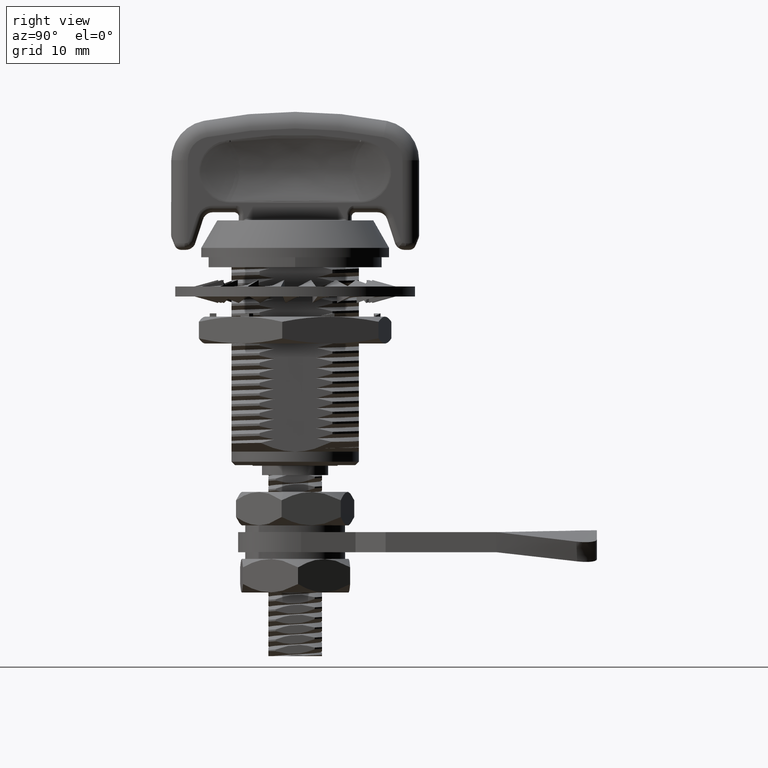
[diagram: clean part render]
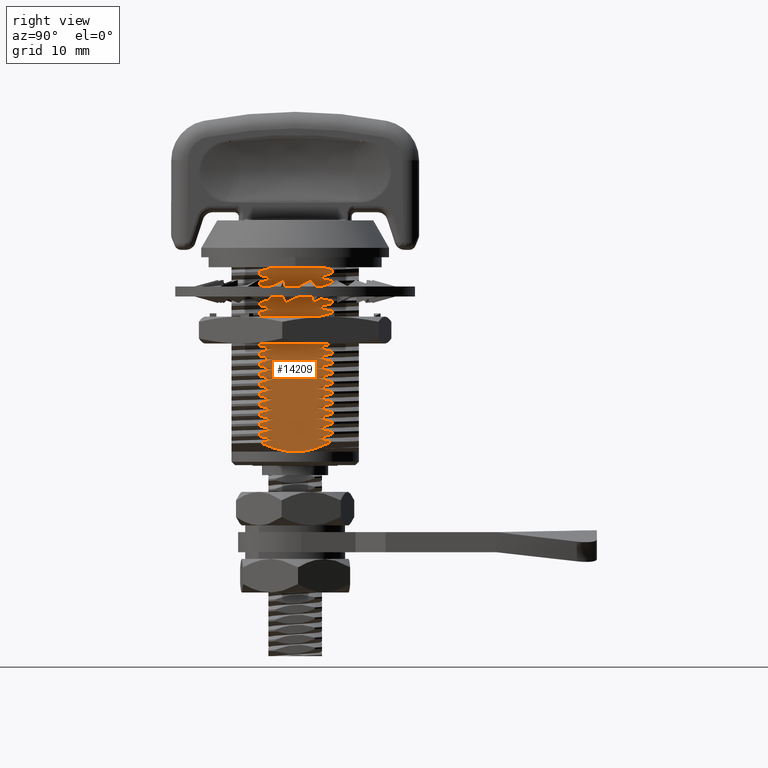
[diagram: same view with one face highlighted and labeled with its STEP entity id]
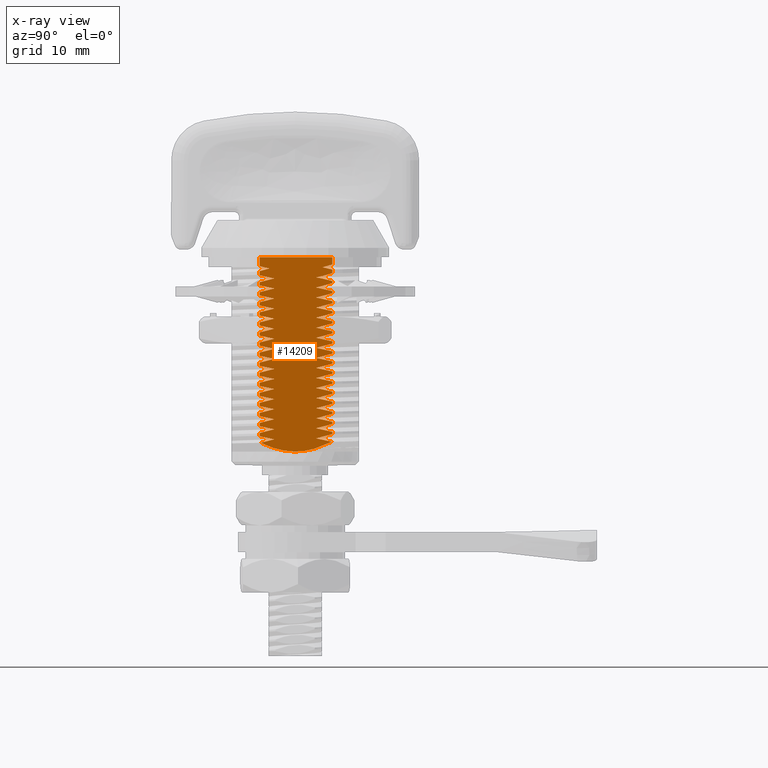
[diagram: x-ray of the same camera — body ghosted, the highlighted face saturated]
A machine part, right view. The second image highlights one B-rep face of the part: STEP entity #14209.
The next image is the same camera in x-ray: the body ghosted, the highlighted face saturated — about 0% of this face is hidden behind the body in this view.
In plain terms, the highlighted planar face has unit normal (-1, 0, 0).
Its self-contained STEP definition (entity closure, byte-faithful):
#501=(
BOUNDED_CURVE()
B_SPLINE_CURVE(2,(#18571,#18572,#18573),.UNSPECIFIED.,.F.,.F.)
B_SPLINE_CURVE_WITH_KNOTS((3,3),(-4.86826457753568,-3.28516784041131),
 .UNSPECIFIED.)
CURVE()
GEOMETRIC_REPRESENTATION_ITEM()
RATIONAL_B_SPLINE_CURVE((2.57894736842059,2.57894736838696,2.41197899532909))
REPRESENTATION_ITEM('')
);
#502=(
BOUNDED_CURVE()
B_SPLINE_CURVE(2,(#18583,#18584,#18585),.UNSPECIFIED.,.F.,.F.)
B_SPLINE_CURVE_WITH_KNOTS((3,3),(-6.53537071660072,-4.86826457753568),
 .UNSPECIFIED.)
CURVE()
GEOMETRIC_REPRESENTATION_ITEM()
RATIONAL_B_SPLINE_CURVE((2.39378794951019,2.57894736845601,2.57894736842059))
REPRESENTATION_ITEM('')
);
#633=B_SPLINE_CURVE_WITH_KNOTS('',3,(#19371,#19372,#19373,#19374,#19375,
#19376),.UNSPECIFIED.,.F.,.F.,(4,2,4),(-0.211144219907306,-0.108304283924988,
-2.96224330351543E-5),.UNSPECIFIED.);
#635=B_SPLINE_CURVE_WITH_KNOTS('',3,(#19398,#19399,#19400,#19401,#19402,
#19403),.UNSPECIFIED.,.F.,.F.,(4,2,4),(0.,0.0726895751028931,0.146863595732932),
 .UNSPECIFIED.);
#636=B_SPLINE_CURVE_WITH_KNOTS('',3,(#19405,#19406,#19407,#19408,#19409,
#19410),.UNSPECIFIED.,.F.,.F.,(4,2,4),(2.52619752546307E-5,0.074933426356795,
0.148301148403958),.UNSPECIFIED.);
#637=B_SPLINE_CURVE_WITH_KNOTS('',3,(#19414,#19415,#19416,#19417,#19418,
#19419),.UNSPECIFIED.,.F.,.F.,(4,2,4),(0.,0.109111238313596,0.221891839729686),
 .UNSPECIFIED.);
#638=B_SPLINE_CURVE_WITH_KNOTS('',3,(#19421,#19422,#19423,#19424,#19425,
#19426),.UNSPECIFIED.,.F.,.F.,(4,2,4),(1.18472732943964E-5,0.113837455566915,
0.223838639352547),.UNSPECIFIED.);
#639=B_SPLINE_CURVE_WITH_KNOTS('',3,(#19430,#19431,#19432,#19433,#19434,
#19435),.UNSPECIFIED.,.F.,.F.,(4,2,4),(8.98965991719282E-6,0.111050449210196,
0.222091778965771),.UNSPECIFIED.);
#640=B_SPLINE_CURVE_WITH_KNOTS('',3,(#19437,#19438,#19439,#19440,#19441,
#19442),.UNSPECIFIED.,.F.,.F.,(4,2,4),(9.99999983666844E-7,0.111965063063663,
0.223930231979666),.UNSPECIFIED.);
#641=B_SPLINE_CURVE_WITH_KNOTS('',3,(#19446,#19447,#19448,#19449,#19450,
#19451),.UNSPECIFIED.,.F.,.F.,(4,2,4),(0.,0.109283075773896,0.222037230070003),
 .UNSPECIFIED.);
#642=B_SPLINE_CURVE_WITH_KNOTS('',3,(#19453,#19454,#19455,#19456,#19457,
#19458),.UNSPECIFIED.,.F.,.F.,(4,2,4),(2.97253197160812E-6,0.113836105603929,
0.224043323067133),.UNSPECIFIED.);
#643=B_SPLINE_CURVE_WITH_KNOTS('',3,(#19462,#19463,#19464,#19465,#19466,
#19467),.UNSPECIFIED.,.F.,.F.,(4,2,4),(0.,0.109216411013866,0.221921230074358),
 .UNSPECIFIED.);
#644=B_SPLINE_CURVE_WITH_KNOTS('',3,(#19469,#19470,#19471,#19472,#19473,
#19474),.UNSPECIFIED.,.F.,.F.,(4,2,4),(4.34218688130679E-6,0.113757310736697,
0.223870970549054),.UNSPECIFIED.);
#645=B_SPLINE_CURVE_WITH_KNOTS('',3,(#19478,#19479,#19480,#19481,#19482,
#19483),.UNSPECIFIED.,.F.,.F.,(4,2,4),(0.,0.109205343112607,0.221942442352298),
 .UNSPECIFIED.);
#646=B_SPLINE_CURVE_WITH_KNOTS('',3,(#19485,#19486,#19487,#19488,#19489,
#19490),.UNSPECIFIED.,.F.,.F.,(4,2,4),(6.97264199342926E-6,0.113707786597473,
0.223732555348266),.UNSPECIFIED.);
#647=B_SPLINE_CURVE_WITH_KNOTS('',3,(#19494,#19495,#19496,#19497,#19498,
#19499),.UNSPECIFIED.,.F.,.F.,(4,2,4),(6.58810764897315E-6,0.111108473303992,
0.222210276683141),.UNSPECIFIED.);
#648=B_SPLINE_CURVE_WITH_KNOTS('',3,(#19501,#19502,#19503,#19504,#19505,
#19506),.UNSPECIFIED.,.F.,.F.,(4,2,4),(9.99999986983635E-7,0.111921764019093,
0.223843584997542),.UNSPECIFIED.);
#649=B_SPLINE_CURVE_WITH_KNOTS('',3,(#19510,#19511,#19512,#19513,#19514,
#19515),.UNSPECIFIED.,.F.,.F.,(4,2,4),(0.,0.109078808682345,0.221882245087109),
 .UNSPECIFIED.);
#650=B_SPLINE_CURVE_WITH_KNOTS('',3,(#19517,#19518,#19519,#19520,#19521,
#19522),.UNSPECIFIED.,.F.,.F.,(4,2,4),(1.21601860879933E-5,0.113858769001033,
0.223824808237817),.UNSPECIFIED.);
#651=B_SPLINE_CURVE_WITH_KNOTS('',3,(#19526,#19527,#19528,#19529,#19530,
#19531),.UNSPECIFIED.,.F.,.F.,(4,2,4),(0.,0.10915180760734,0.221901152554078),
 .UNSPECIFIED.);
#652=B_SPLINE_CURVE_WITH_KNOTS('',3,(#19533,#19534,#19535,#19536,#19537,
#19538),.UNSPECIFIED.,.F.,.F.,(4,2,4),(8.05658125980238E-6,0.11380375036586,
0.223848594183236),.UNSPECIFIED.);
#653=B_SPLINE_CURVE_WITH_KNOTS('',3,(#19542,#19543,#19544,#19545,#19546,
#19547),.UNSPECIFIED.,.F.,.F.,(4,2,4),(7.80729259985965E-6,0.111081878065532,
0.222155842788892),.UNSPECIFIED.);
#654=B_SPLINE_CURVE_WITH_KNOTS('',3,(#19549,#19550,#19551,#19552,#19553,
#19554),.UNSPECIFIED.,.F.,.F.,(4,2,4),(9.99999981904365E-7,0.111943576989908,
0.223886235310148),.UNSPECIFIED.);
#655=B_SPLINE_CURVE_WITH_KNOTS('',3,(#19558,#19559,#19560,#19561,#19562,
#19563),.UNSPECIFIED.,.F.,.F.,(4,2,4),(0.,0.109185406257042,0.221818306424622),
 .UNSPECIFIED.);
#656=B_SPLINE_CURVE_WITH_KNOTS('',3,(#19565,#19566,#19567,#19568,#19569,
#19570),.UNSPECIFIED.,.F.,.F.,(4,2,4),(7.79957571879231E-6,0.113760475341912,
0.223923918229394),.UNSPECIFIED.);
#657=B_SPLINE_CURVE_WITH_KNOTS('',3,(#19574,#19575,#19576,#19577,#19578,
#19579),.UNSPECIFIED.,.F.,.F.,(4,2,4),(0.,0.109278627832038,0.222046077815348),
 .UNSPECIFIED.);
#658=B_SPLINE_CURVE_WITH_KNOTS('',3,(#19581,#19582,#19583,#19584,#19585,
#19586),.UNSPECIFIED.,.F.,.F.,(4,2,4),(3.13192747438918E-6,0.113810850434774,
0.223975375879406),.UNSPECIFIED.);
#659=B_SPLINE_CURVE_WITH_KNOTS('',3,(#19590,#19591,#19592,#19593,#19594,
#19595),.UNSPECIFIED.,.F.,.F.,(4,2,4),(0.,0.109160329896939,0.221904110253314),
 .UNSPECIFIED.);
#660=B_SPLINE_CURVE_WITH_KNOTS('',3,(#19597,#19598,#19599,#19600,#19601,
#19602),.UNSPECIFIED.,.F.,.F.,(4,2,4),(7.67531325630614E-6,0.11379819045162,
0.223852156164796),.UNSPECIFIED.);
#661=B_SPLINE_CURVE_WITH_KNOTS('',3,(#19606,#19607,#19608,#19609,#19610,
#19611),.UNSPECIFIED.,.F.,.F.,(4,2,4),(0.,0.109219621679993,0.221919479976056),
 .UNSPECIFIED.);
#662=B_SPLINE_CURVE_WITH_KNOTS('',3,(#19613,#19614,#19615,#19616,#19617,
#19618),.UNSPECIFIED.,.F.,.F.,(4,2,4),(3.42214562669084E-6,0.113751430097451,
0.223868676682495),.UNSPECIFIED.);
#663=B_SPLINE_CURVE_WITH_KNOTS('',3,(#19622,#19623,#19624,#19625,#19626,
#19627),.UNSPECIFIED.,.F.,.F.,(4,2,4),(0.,0.10927569868242,0.221931931939442),
 .UNSPECIFIED.);
#664=B_SPLINE_CURVE_WITH_KNOTS('',3,(#19629,#19630,#19631,#19632,#19633,
#19634),.UNSPECIFIED.,.F.,.F.,(4,2,4),(9.78565234633347E-7,0.113706553791781,
0.223883637414),.UNSPECIFIED.);
#665=B_SPLINE_CURVE_WITH_KNOTS('',3,(#19638,#19639,#19640,#19641,#19642,
#19643),.UNSPECIFIED.,.F.,.F.,(4,2,4),(0.,0.109279835567949,0.222009877265542),
 .UNSPECIFIED.);
#666=B_SPLINE_CURVE_WITH_KNOTS('',3,(#19645,#19646,#19647,#19648,#19649,
#19650),.UNSPECIFIED.,.F.,.F.,(4,2,4),(2.52287249659445E-6,0.113881727482026,
0.224155219377674),.UNSPECIFIED.);
#667=B_SPLINE_CURVE_WITH_KNOTS('',3,(#19654,#19655,#19656,#19657,#19658,
#19659),.UNSPECIFIED.,.F.,.F.,(4,2,4),(0.,0.109016578658982,0.221889501450977),
 .UNSPECIFIED.);
#668=B_SPLINE_CURVE_WITH_KNOTS('',3,(#19661,#19662,#19663,#19664,#19665,
#19666),.UNSPECIFIED.,.F.,.F.,(4,2,4),(3.02432376023041E-5,0.113945987751165,
0.223845067080168),.UNSPECIFIED.);
#669=B_SPLINE_CURVE_WITH_KNOTS('',3,(#19669,#19670,#19671,#19672,#19673,
#19674),.UNSPECIFIED.,.F.,.F.,(4,2,4),(0.,0.109323457089136,0.221993163746975),
 .UNSPECIFIED.);
#670=B_SPLINE_CURVE_WITH_KNOTS('',3,(#19676,#19677,#19678,#19679,#19680,
#19681),.UNSPECIFIED.,.F.,.F.,(4,2,4),(2.01208067632086E-5,0.12099943007453,
0.241978391232882),.UNSPECIFIED.);
#671=B_SPLINE_CURVE_WITH_KNOTS('',3,(#19683,#19684,#19685,#19686,#19687,
#19688),.UNSPECIFIED.,.F.,.F.,(4,2,4),(9.99955374679465E-7,0.125228292188699,
0.250455882586627),.UNSPECIFIED.);
#672=B_SPLINE_CURVE_WITH_KNOTS('',3,(#19692,#19693,#19694,#19695,#19696,
#19697),.UNSPECIFIED.,.F.,.F.,(4,2,4),(0.,0.121808060700577,0.248136287510605),
 .UNSPECIFIED.);
#673=B_SPLINE_CURVE_WITH_KNOTS('',3,(#19699,#19700,#19701,#19702,#19703,
#19704),.UNSPECIFIED.,.F.,.F.,(4,2,4),(1.67998195983501E-5,0.127515096869572,
0.250310129955672),.UNSPECIFIED.);
#674=B_SPLINE_CURVE_WITH_KNOTS('',3,(#19708,#19709,#19710,#19711,#19712,
#19713),.UNSPECIFIED.,.F.,.F.,(4,2,4),(0.,0.121711671610961,0.248068472322192),
 .UNSPECIFIED.);
#675=B_SPLINE_CURVE_WITH_KNOTS('',3,(#19715,#19716,#19717,#19718,#19719,
#19720),.UNSPECIFIED.,.F.,.F.,(4,2,4),(7.94840078570598E-6,0.127529468386959,
0.250222927196537),.UNSPECIFIED.);
#676=B_SPLINE_CURVE_WITH_KNOTS('',3,(#19724,#19725,#19726,#19727,#19728,
#19729),.UNSPECIFIED.,.F.,.F.,(4,2,4),(0.,0.121780745379178,0.248086700085796),
 .UNSPECIFIED.);
#677=B_SPLINE_CURVE_WITH_KNOTS('',3,(#19731,#19732,#19733,#19734,#19735,
#19736),.UNSPECIFIED.,.F.,.F.,(4,2,4),(4.11715535746863E-6,0.127477992097778,
0.250246381730915),.UNSPECIFIED.);
#678=B_SPLINE_CURVE_WITH_KNOTS('',3,(#19740,#19741,#19742,#19743,#19744,
#19745),.UNSPECIFIED.,.F.,.F.,(4,2,4),(0.,0.121851625147548,0.24810494088885),
 .UNSPECIFIED.);
#679=B_SPLINE_CURVE_WITH_KNOTS('',3,(#19747,#19748,#19749,#19750,#19751,
#19752),.UNSPECIFIED.,.F.,.F.,(4,2,4),(1.28814825144689E-6,0.127425084620659,
0.25026983879045),.UNSPECIFIED.);
#680=B_SPLINE_CURVE_WITH_KNOTS('',3,(#19756,#19757,#19758,#19759,#19760,
#19761),.UNSPECIFIED.,.F.,.F.,(4,2,4),(0.,0.121759122970684,0.248082686011015),
 .UNSPECIFIED.);
#681=B_SPLINE_CURVE_WITH_KNOTS('',3,(#19763,#19764,#19765,#19766,#19767,
#19768),.UNSPECIFIED.,.F.,.F.,(4,2,4),(5.86833999302891E-6,0.1274966466642,
0.25024162799775),.UNSPECIFIED.);
#682=B_SPLINE_CURVE_WITH_KNOTS('',3,(#19772,#19773,#19774,#19775,#19776,
#19777),.UNSPECIFIED.,.F.,.F.,(4,2,4),(0.,0.121681139810687,0.248062072477119),
 .UNSPECIFIED.);
#683=B_SPLINE_CURVE_WITH_KNOTS('',3,(#19779,#19780,#19781,#19782,#19783,
#19784),.UNSPECIFIED.,.F.,.F.,(4,2,4),(1.01723167323045E-5,0.127554107201862,
0.250214082472261),.UNSPECIFIED.);
#684=B_SPLINE_CURVE_WITH_KNOTS('',3,(#19788,#19789,#19790,#19791,#19792,
#19793),.UNSPECIFIED.,.F.,.F.,(4,2,4),(0.,0.121798787725577,0.248550723135437),
 .UNSPECIFIED.);
#685=B_SPLINE_CURVE_WITH_KNOTS('',3,(#19795,#19796,#19797,#19798,#19799,
#19800),.UNSPECIFIED.,.F.,.F.,(4,2,4),(1.24214185769597E-5,0.127595680908494,
0.250041995417454),.UNSPECIFIED.);
#686=B_SPLINE_CURVE_WITH_KNOTS('',3,(#19804,#19805,#19806,#19807,#19808,
#19809),.UNSPECIFIED.,.F.,.F.,(4,2,4),(0.,0.121791648895106,0.248041703502306),
 .UNSPECIFIED.);
#687=B_SPLINE_CURVE_WITH_KNOTS('',3,(#19811,#19812,#19813,#19814,#19815,
#19816),.UNSPECIFIED.,.F.,.F.,(4,2,4),(1.14490986147649E-5,0.127555380491098,
0.250475510827619),.UNSPECIFIED.);
#688=B_SPLINE_CURVE_WITH_KNOTS('',3,(#19820,#19821,#19822,#19823,#19824,
#19825),.UNSPECIFIED.,.F.,.F.,(4,2,4),(0.,0.121895807972364,0.248176053943087),
 .UNSPECIFIED.);
#689=B_SPLINE_CURVE_WITH_KNOTS('',3,(#19827,#19828,#19829,#19830,#19831,
#19832),.UNSPECIFIED.,.F.,.F.,(4,2,4),(2.34021403520351E-6,0.127660171521095,
0.250746267434585),.UNSPECIFIED.);
#690=B_SPLINE_CURVE_WITH_KNOTS('',3,(#19836,#19837,#19838,#19839,#19840,
#19841),.UNSPECIFIED.,.F.,.F.,(4,2,4),(0.,0.121808967232945,0.248172769685325),
 .UNSPECIFIED.);
#691=B_SPLINE_CURVE_WITH_KNOTS('',3,(#19843,#19844,#19845,#19846,#19847,
#19848),.UNSPECIFIED.,.F.,.F.,(4,2,4),(7.37716453149809E-6,0.127342922424479,
0.24995391734526),.UNSPECIFIED.);
#692=B_SPLINE_CURVE_WITH_KNOTS('',3,(#19852,#19853,#19854,#19855,#19856,
#19857),.UNSPECIFIED.,.F.,.F.,(4,2,4),(1.05355330485063E-5,0.124145668678428,
0.248280657862723),.UNSPECIFIED.);
#693=B_SPLINE_CURVE_WITH_KNOTS('',3,(#19859,#19860,#19861,#19862,#19863,
#19864),.UNSPECIFIED.,.F.,.F.,(4,2,4),(1.00850051724541E-6,0.125178296234225,
0.250356678777487),.UNSPECIFIED.);
#694=B_SPLINE_CURVE_WITH_KNOTS('',3,(#19868,#19869,#19870,#19871,#19872,
#19873),.UNSPECIFIED.,.F.,.F.,(4,2,4),(8.21327756132327E-7,0.121645623012917,
0.248054704706334),.UNSPECIFIED.);
#695=B_SPLINE_CURVE_WITH_KNOTS('',3,(#19875,#19876,#19877,#19878,#19879,
#19880),.UNSPECIFIED.,.F.,.F.,(4,2,4),(1.10460360933005E-5,0.127580243105066,
0.250199788945444),.UNSPECIFIED.);
#696=B_SPLINE_CURVE_WITH_KNOTS('',3,(#19884,#19885,#19886,#19887,#19888,
#19889),.UNSPECIFIED.,.F.,.F.,(4,2,4),(0.,0.121833553713583,0.248102844497788),
 .UNSPECIFIED.);
#697=B_SPLINE_CURVE_WITH_KNOTS('',3,(#19891,#19892,#19893,#19894,#19895,
#19896),.UNSPECIFIED.,.F.,.F.,(4,2,4),(2.17553529876562E-6,0.127441373623019,
0.250266521391837),.UNSPECIFIED.);
#698=B_SPLINE_CURVE_WITH_KNOTS('',3,(#19900,#19901,#19902,#19903,#19904,
#19905),.UNSPECIFIED.,.F.,.F.,(4,2,4),(0.,0.121674483231244,0.248061051002604),
 .UNSPECIFIED.);
#699=B_SPLINE_CURVE_WITH_KNOTS('',3,(#19907,#19908,#19909,#19910,#19911,
#19912),.UNSPECIFIED.,.F.,.F.,(4,2,4),(1.08392447215272E-5,0.12756002453639,
0.250212659197551),.UNSPECIFIED.);
#700=B_SPLINE_CURVE_WITH_KNOTS('',3,(#19916,#19917,#19918,#19919,#19920,
#19921),.UNSPECIFIED.,.F.,.F.,(4,2,4),(0.,0.121785381536189,0.247999893328467),
 .UNSPECIFIED.);
#701=B_SPLINE_CURVE_WITH_KNOTS('',3,(#19923,#19924,#19925,#19926,#19927,
#19928),.UNSPECIFIED.,.F.,.F.,(4,2,4),(1.14160445696537E-5,0.127551910987963,
0.250498567271634),.UNSPECIFIED.);
#702=B_SPLINE_CURVE_WITH_KNOTS('',3,(#19932,#19933,#19934,#19935,#19936,
#19937),.UNSPECIFIED.,.F.,.F.,(4,2,4),(-0.160051112368073,-0.0784705553750341,
-4.19496938431707E-5),.UNSPECIFIED.);
#703=B_SPLINE_CURVE_WITH_KNOTS('',3,(#19939,#19940,#19941,#19942,#19943,
#19944),.UNSPECIFIED.,.F.,.F.,(4,2,4),(0.,0.0438393192437123,0.0881089672838135),
 .UNSPECIFIED.);
#704=B_SPLINE_CURVE_WITH_KNOTS('',3,(#19946,#19947,#19948,#19949,#19950,
#19951),.UNSPECIFIED.,.F.,.F.,(4,2,4),(4.18786612809409E-5,0.0447026212952606,
0.0889024308845384),.UNSPECIFIED.);
#705=B_SPLINE_CURVE_WITH_KNOTS('',3,(#19953,#19954,#19955,#19956,#19957,
#19958),.UNSPECIFIED.,.F.,.F.,(4,2,4),(-0.161580664607859,-0.0825624111969729,
-4.58119358820863E-5),.UNSPECIFIED.);
#706=B_SPLINE_CURVE_WITH_KNOTS('',3,(#19962,#19963,#19964,#19965,#19966,
#19967),.UNSPECIFIED.,.F.,.F.,(4,2,4),(-0.150534412948011,-0.0739466490559106,
0.),.UNSPECIFIED.);
#707=B_SPLINE_CURVE_WITH_KNOTS('',3,(#19969,#19970,#19971,#19972,#19973,
#19974),.UNSPECIFIED.,.F.,.F.,(4,2,4),(-0.15200377421624,-0.0774756515221131,
-1.56341494059437E-5),.UNSPECIFIED.);
#2093=LINE('',#19396,#2772);
#2094=LINE('',#19412,#2773);
#2095=LINE('',#19428,#2774);
#2096=LINE('',#19444,#2775);
#2097=LINE('',#19460,#2776);
#2098=LINE('',#19476,#2777);
#2099=LINE('',#19492,#2778);
#2100=LINE('',#19508,#2779);
#2101=LINE('',#19524,#2780);
#2102=LINE('',#19540,#2781);
#2103=LINE('',#19556,#2782);
#2104=LINE('',#19572,#2783);
#2105=LINE('',#19588,#2784);
#2106=LINE('',#19604,#2785);
#2107=LINE('',#19620,#2786);
#2108=LINE('',#19636,#2787);
#2109=LINE('',#19652,#2788);
#2110=LINE('',#19668,#2789);
#2111=LINE('',#19690,#2790);
#2112=LINE('',#19706,#2791);
#2113=LINE('',#19722,#2792);
#2114=LINE('',#19738,#2793);
#2115=LINE('',#19754,#2794);
#2116=LINE('',#19770,#2795);
#2117=LINE('',#19786,#2796);
#2118=LINE('',#19802,#2797);
#2119=LINE('',#19818,#2798);
#2120=LINE('',#19834,#2799);
#2121=LINE('',#19850,#2800);
#2122=LINE('',#19866,#2801);
#2123=LINE('',#19882,#2802);
#2124=LINE('',#19898,#2803);
#2125=LINE('',#19914,#2804);
#2126=LINE('',#19930,#2805);
#2127=LINE('',#19960,#2806);
#2128=LINE('',#19976,#2807);
#2129=LINE('',#19977,#2808);
#2772=VECTOR('',#16118,1.3516371487211);
#2773=VECTOR('',#16119,0.630132331924731);
#2774=VECTOR('',#16120,0.489445032143521);
#2775=VECTOR('',#16121,0.489672549434341);
#2776=VECTOR('',#16122,0.489879612202286);
#2777=VECTOR('',#16123,0.489772752332498);
#2778=VECTOR('',#16124,0.489574523239917);
#2779=VECTOR('',#16125,0.489448416327101);
#2780=VECTOR('',#16126,0.4895471016203);
#2781=VECTOR('',#16127,0.4895455753317);
#2782=VECTOR('',#16128,0.489540242428501);
#2783=VECTOR('',#16129,0.4897764850577);
#2784=VECTOR('',#16130,0.489788494297201);
#2785=VECTOR('',#16131,0.489785313711502);
#2786=VECTOR('',#16132,0.489960174340203);
#2787=VECTOR('',#16133,0.489982619692699);
#2788=VECTOR('',#16134,0.489165491605301);
#2789=VECTOR('',#16135,0.489079753592199);
#2790=VECTOR('',#16136,0.344191457229468);
#2791=VECTOR('',#16137,0.344644722348513);
#2792=VECTOR('',#16138,0.34500847757287);
#2793=VECTOR('',#16139,0.345201080332663);
#2794=VECTOR('',#16140,0.345148963492267);
#2795=VECTOR('',#16141,0.344894227372645);
#2796=VECTOR('',#16142,0.344708096739914);
#2797=VECTOR('',#16143,0.34467351488116);
#2798=VECTOR('',#16144,0.344962835596515);
#2799=VECTOR('',#16145,0.345080397500937);
#2800=VECTOR('',#16146,0.344824075115267);
#2801=VECTOR('',#16147,0.344716513335594);
#2802=VECTOR('',#16148,0.344976066922035);
#2803=VECTOR('',#16149,0.344980996030852);
#2804=VECTOR('',#16150,0.344714528199994);
#2805=VECTOR('',#16151,0.34361630293619);
#2806=VECTOR('',#16152,0.547567523132542);
#2807=VECTOR('',#16153,1.09503115128076);
#2808=VECTOR('',#16154,10.837557785852);
#3512=FACE_OUTER_BOUND('',#4385,.T.);
#4385=EDGE_LOOP('',(#9557,#9558,#9559,#9560,#9561,#9562,#9563,#9564,#9565,
#9566,#9567,#9568,#9569,#9570,#9571,#9572,#9573,#9574,#9575,#9576,#9577,
#9578,#9579,#9580,#9581,#9582,#9583,#9584,#9585,#9586,#9587,#9588,#9589,
#9590,#9591,#9592,#9593,#9594,#9595,#9596,#9597,#9598,#9599,#9600,#9601,
#9602,#9603,#9604,#9605,#9606,#9607,#9608,#9609,#9610,#9611,#9612,#9613,
#9614,#9615,#9616,#9617,#9618,#9619,#9620,#9621,#9622,#9623,#9624,#9625,
#9626,#9627,#9628,#9629,#9630,#9631,#9632,#9633,#9634,#9635,#9636,#9637,
#9638,#9639,#9640,#9641,#9642,#9643,#9644,#9645,#9646,#9647,#9648,#9649,
#9650,#9651,#9652,#9653,#9654,#9655,#9656,#9657,#9658,#9659,#9660,#9661,
#9662,#9663,#9664,#9665,#9666,#9667,#9668,#9669));
#5585=VERTEX_POINT('',#18556);
#5586=VERTEX_POINT('',#18560);
#5589=VERTEX_POINT('',#18576);
#5707=VERTEX_POINT('',#19370);
#5708=VERTEX_POINT('',#19394);
#5709=VERTEX_POINT('',#19395);
#5710=VERTEX_POINT('',#19397);
#5711=VERTEX_POINT('',#19404);
#5712=VERTEX_POINT('',#19411);
#5713=VERTEX_POINT('',#19413);
#5714=VERTEX_POINT('',#19420);
#5715=VERTEX_POINT('',#19427);
#5716=VERTEX_POINT('',#19429);
#5717=VERTEX_POINT('',#19436);
#5718=VERTEX_POINT('',#19443);
#5719=VERTEX_POINT('',#19445);
#5720=VERTEX_POINT('',#19452);
#5721=VERTEX_POINT('',#19459);
#5722=VERTEX_POINT('',#19461);
#5723=VERTEX_POINT('',#19468);
#5724=VERTEX_POINT('',#19475);
#5725=VERTEX_POINT('',#19477);
#5726=VERTEX_POINT('',#19484);
#5727=VERTEX_POINT('',#19491);
#5728=VERTEX_POINT('',#19493);
#5729=VERTEX_POINT('',#19500);
#5730=VERTEX_POINT('',#19507);
#5731=VERTEX_POINT('',#19509);
#5732=VERTEX_POINT('',#19516);
#5733=VERTEX_POINT('',#19523);
#5734=VERTEX_POINT('',#19525);
#5735=VERTEX_POINT('',#19532);
#5736=VERTEX_POINT('',#19539);
#5737=VERTEX_POINT('',#19541);
#5738=VERTEX_POINT('',#19548);
#5739=VERTEX_POINT('',#19555);
#5740=VERTEX_POINT('',#19557);
#5741=VERTEX_POINT('',#19564);
#5742=VERTEX_POINT('',#19571);
#5743=VERTEX_POINT('',#19573);
#5744=VERTEX_POINT('',#19580);
#5745=VERTEX_POINT('',#19587);
#5746=VERTEX_POINT('',#19589);
#5747=VERTEX_POINT('',#19596);
#5748=VERTEX_POINT('',#19603);
#5749=VERTEX_POINT('',#19605);
#5750=VERTEX_POINT('',#19612);
#5751=VERTEX_POINT('',#19619);
#5752=VERTEX_POINT('',#19621);
#5753=VERTEX_POINT('',#19628);
#5754=VERTEX_POINT('',#19635);
#5755=VERTEX_POINT('',#19637);
#5756=VERTEX_POINT('',#19644);
#5757=VERTEX_POINT('',#19651);
#5758=VERTEX_POINT('',#19653);
#5759=VERTEX_POINT('',#19660);
#5760=VERTEX_POINT('',#19667);
#5761=VERTEX_POINT('',#19675);
#5762=VERTEX_POINT('',#19682);
#5763=VERTEX_POINT('',#19689);
#5764=VERTEX_POINT('',#19691);
#5765=VERTEX_POINT('',#19698);
#5766=VERTEX_POINT('',#19705);
#5767=VERTEX_POINT('',#19707);
#5768=VERTEX_POINT('',#19714);
#5769=VERTEX_POINT('',#19721);
#5770=VERTEX_POINT('',#19723);
#5771=VERTEX_POINT('',#19730);
#5772=VERTEX_POINT('',#19737);
#5773=VERTEX_POINT('',#19739);
#5774=VERTEX_POINT('',#19746);
#5775=VERTEX_POINT('',#19753);
#5776=VERTEX_POINT('',#19755);
#5777=VERTEX_POINT('',#19762);
#5778=VERTEX_POINT('',#19769);
#5779=VERTEX_POINT('',#19771);
#5780=VERTEX_POINT('',#19778);
#5781=VERTEX_POINT('',#19785);
#5782=VERTEX_POINT('',#19787);
#5783=VERTEX_POINT('',#19794);
#5784=VERTEX_POINT('',#19801);
#5785=VERTEX_POINT('',#19803);
#5786=VERTEX_POINT('',#19810);
#5787=VERTEX_POINT('',#19817);
#5788=VERTEX_POINT('',#19819);
#5789=VERTEX_POINT('',#19826);
#5790=VERTEX_POINT('',#19833);
#5791=VERTEX_POINT('',#19835);
#5792=VERTEX_POINT('',#19842);
#5793=VERTEX_POINT('',#19849);
#5794=VERTEX_POINT('',#19851);
#5795=VERTEX_POINT('',#19858);
#5796=VERTEX_POINT('',#19865);
#5797=VERTEX_POINT('',#19867);
#5798=VERTEX_POINT('',#19874);
#5799=VERTEX_POINT('',#19881);
#5800=VERTEX_POINT('',#19883);
#5801=VERTEX_POINT('',#19890);
#5802=VERTEX_POINT('',#19897);
#5803=VERTEX_POINT('',#19899);
#5804=VERTEX_POINT('',#19906);
#5805=VERTEX_POINT('',#19913);
#5806=VERTEX_POINT('',#19915);
#5807=VERTEX_POINT('',#19922);
#5808=VERTEX_POINT('',#19929);
#5809=VERTEX_POINT('',#19931);
#5810=VERTEX_POINT('',#19938);
#5811=VERTEX_POINT('',#19945);
#5812=VERTEX_POINT('',#19952);
#5813=VERTEX_POINT('',#19959);
#5814=VERTEX_POINT('',#19961);
#5815=VERTEX_POINT('',#19968);
#5816=VERTEX_POINT('',#19975);
#7091=EDGE_CURVE('',#5585,#5586,#501,.T.);
#7093=EDGE_CURVE('',#5589,#5585,#502,.T.);
#7215=EDGE_CURVE('',#5707,#5586,#633,.T.);
#7217=EDGE_CURVE('',#5708,#5709,#2093,.T.);
#7218=EDGE_CURVE('',#5710,#5708,#635,.T.);
#7219=EDGE_CURVE('',#5711,#5710,#636,.T.);
#7220=EDGE_CURVE('',#5712,#5711,#2094,.T.);
#7221=EDGE_CURVE('',#5713,#5712,#637,.T.);
#7222=EDGE_CURVE('',#5714,#5713,#638,.T.);
#7223=EDGE_CURVE('',#5715,#5714,#2095,.T.);
#7224=EDGE_CURVE('',#5716,#5715,#639,.T.);
#7225=EDGE_CURVE('',#5717,#5716,#640,.T.);
#7226=EDGE_CURVE('',#5718,#5717,#2096,.T.);
#7227=EDGE_CURVE('',#5719,#5718,#641,.T.);
#7228=EDGE_CURVE('',#5720,#5719,#642,.T.);
#7229=EDGE_CURVE('',#5721,#5720,#2097,.T.);
#7230=EDGE_CURVE('',#5722,#5721,#643,.T.);
#7231=EDGE_CURVE('',#5723,#5722,#644,.T.);
#7232=EDGE_CURVE('',#5724,#5723,#2098,.T.);
#7233=EDGE_CURVE('',#5725,#5724,#645,.T.);
#7234=EDGE_CURVE('',#5726,#5725,#646,.T.);
#7235=EDGE_CURVE('',#5727,#5726,#2099,.T.);
#7236=EDGE_CURVE('',#5728,#5727,#647,.T.);
#7237=EDGE_CURVE('',#5729,#5728,#648,.T.);
#7238=EDGE_CURVE('',#5730,#5729,#2100,.T.);
#7239=EDGE_CURVE('',#5731,#5730,#649,.T.);
#7240=EDGE_CURVE('',#5732,#5731,#650,.T.);
#7241=EDGE_CURVE('',#5733,#5732,#2101,.T.);
#7242=EDGE_CURVE('',#5734,#5733,#651,.T.);
#7243=EDGE_CURVE('',#5735,#5734,#652,.T.);
#7244=EDGE_CURVE('',#5736,#5735,#2102,.T.);
#7245=EDGE_CURVE('',#5737,#5736,#653,.T.);
#7246=EDGE_CURVE('',#5738,#5737,#654,.T.);
#7247=EDGE_CURVE('',#5739,#5738,#2103,.T.);
#7248=EDGE_CURVE('',#5740,#5739,#655,.T.);
#7249=EDGE_CURVE('',#5741,#5740,#656,.T.);
#7250=EDGE_CURVE('',#5742,#5741,#2104,.T.);
#7251=EDGE_CURVE('',#5743,#5742,#657,.T.);
#7252=EDGE_CURVE('',#5744,#5743,#658,.T.);
#7253=EDGE_CURVE('',#5745,#5744,#2105,.T.);
#7254=EDGE_CURVE('',#5746,#5745,#659,.T.);
#7255=EDGE_CURVE('',#5747,#5746,#660,.T.);
#7256=EDGE_CURVE('',#5748,#5747,#2106,.T.);
#7257=EDGE_CURVE('',#5749,#5748,#661,.T.);
#7258=EDGE_CURVE('',#5750,#5749,#662,.T.);
#7259=EDGE_CURVE('',#5751,#5750,#2107,.T.);
#7260=EDGE_CURVE('',#5752,#5751,#663,.T.);
#7261=EDGE_CURVE('',#5753,#5752,#664,.T.);
#7262=EDGE_CURVE('',#5754,#5753,#2108,.T.);
#7263=EDGE_CURVE('',#5755,#5754,#665,.T.);
#7264=EDGE_CURVE('',#5756,#5755,#666,.T.);
#7265=EDGE_CURVE('',#5757,#5756,#2109,.T.);
#7266=EDGE_CURVE('',#5758,#5757,#667,.T.);
#7267=EDGE_CURVE('',#5759,#5758,#668,.T.);
#7268=EDGE_CURVE('',#5760,#5759,#2110,.T.);
#7269=EDGE_CURVE('',#5707,#5760,#669,.T.);
#7270=EDGE_CURVE('',#5761,#5589,#670,.T.);
#7271=EDGE_CURVE('',#5762,#5761,#671,.T.);
#7272=EDGE_CURVE('',#5763,#5762,#2111,.T.);
#7273=EDGE_CURVE('',#5764,#5763,#672,.T.);
#7274=EDGE_CURVE('',#5765,#5764,#673,.T.);
#7275=EDGE_CURVE('',#5766,#5765,#2112,.T.);
#7276=EDGE_CURVE('',#5767,#5766,#674,.T.);
#7277=EDGE_CURVE('',#5768,#5767,#675,.T.);
#7278=EDGE_CURVE('',#5769,#5768,#2113,.T.);
#7279=EDGE_CURVE('',#5770,#5769,#676,.T.);
#7280=EDGE_CURVE('',#5771,#5770,#677,.T.);
#7281=EDGE_CURVE('',#5772,#5771,#2114,.T.);
#7282=EDGE_CURVE('',#5773,#5772,#678,.T.);
#7283=EDGE_CURVE('',#5774,#5773,#679,.T.);
#7284=EDGE_CURVE('',#5775,#5774,#2115,.T.);
#7285=EDGE_CURVE('',#5776,#5775,#680,.T.);
#7286=EDGE_CURVE('',#5777,#5776,#681,.T.);
#7287=EDGE_CURVE('',#5778,#5777,#2116,.T.);
#7288=EDGE_CURVE('',#5779,#5778,#682,.T.);
#7289=EDGE_CURVE('',#5780,#5779,#683,.T.);
#7290=EDGE_CURVE('',#5781,#5780,#2117,.T.);
#7291=EDGE_CURVE('',#5782,#5781,#684,.T.);
#7292=EDGE_CURVE('',#5783,#5782,#685,.T.);
#7293=EDGE_CURVE('',#5784,#5783,#2118,.T.);
#7294=EDGE_CURVE('',#5785,#5784,#686,.T.);
#7295=EDGE_CURVE('',#5786,#5785,#687,.T.);
#7296=EDGE_CURVE('',#5787,#5786,#2119,.T.);
#7297=EDGE_CURVE('',#5788,#5787,#688,.T.);
#7298=EDGE_CURVE('',#5789,#5788,#689,.T.);
#7299=EDGE_CURVE('',#5790,#5789,#2120,.T.);
#7300=EDGE_CURVE('',#5791,#5790,#690,.T.);
#7301=EDGE_CURVE('',#5792,#5791,#691,.T.);
#7302=EDGE_CURVE('',#5793,#5792,#2121,.T.);
#7303=EDGE_CURVE('',#5794,#5793,#692,.T.);
#7304=EDGE_CURVE('',#5795,#5794,#693,.T.);
#7305=EDGE_CURVE('',#5796,#5795,#2122,.T.);
#7306=EDGE_CURVE('',#5797,#5796,#694,.T.);
#7307=EDGE_CURVE('',#5798,#5797,#695,.T.);
#7308=EDGE_CURVE('',#5799,#5798,#2123,.T.);
#7309=EDGE_CURVE('',#5800,#5799,#696,.T.);
#7310=EDGE_CURVE('',#5801,#5800,#697,.T.);
#7311=EDGE_CURVE('',#5802,#5801,#2124,.T.);
#7312=EDGE_CURVE('',#5803,#5802,#698,.T.);
#7313=EDGE_CURVE('',#5804,#5803,#699,.T.);
#7314=EDGE_CURVE('',#5805,#5804,#2125,.T.);
#7315=EDGE_CURVE('',#5806,#5805,#700,.T.);
#7316=EDGE_CURVE('',#5807,#5806,#701,.T.);
#7317=EDGE_CURVE('',#5808,#5807,#2126,.T.);
#7318=EDGE_CURVE('',#5808,#5809,#702,.T.);
#7319=EDGE_CURVE('',#5810,#5809,#703,.T.);
#7320=EDGE_CURVE('',#5811,#5810,#704,.T.);
#7321=EDGE_CURVE('',#5811,#5812,#705,.T.);
#7322=EDGE_CURVE('',#5813,#5812,#2127,.T.);
#7323=EDGE_CURVE('',#5813,#5814,#706,.T.);
#7324=EDGE_CURVE('',#5814,#5815,#707,.T.);
#7325=EDGE_CURVE('',#5816,#5815,#2128,.T.);
#7326=EDGE_CURVE('',#5709,#5816,#2129,.T.);
#9557=ORIENTED_EDGE('',*,*,#7217,.F.);
#9558=ORIENTED_EDGE('',*,*,#7218,.F.);
#9559=ORIENTED_EDGE('',*,*,#7219,.F.);
#9560=ORIENTED_EDGE('',*,*,#7220,.F.);
#9561=ORIENTED_EDGE('',*,*,#7221,.F.);
#9562=ORIENTED_EDGE('',*,*,#7222,.F.);
#9563=ORIENTED_EDGE('',*,*,#7223,.F.);
#9564=ORIENTED_EDGE('',*,*,#7224,.F.);
#9565=ORIENTED_EDGE('',*,*,#7225,.F.);
#9566=ORIENTED_EDGE('',*,*,#7226,.F.);
#9567=ORIENTED_EDGE('',*,*,#7227,.F.);
#9568=ORIENTED_EDGE('',*,*,#7228,.F.);
#9569=ORIENTED_EDGE('',*,*,#7229,.F.);
#9570=ORIENTED_EDGE('',*,*,#7230,.F.);
#9571=ORIENTED_EDGE('',*,*,#7231,.F.);
#9572=ORIENTED_EDGE('',*,*,#7232,.F.);
#9573=ORIENTED_EDGE('',*,*,#7233,.F.);
#9574=ORIENTED_EDGE('',*,*,#7234,.F.);
#9575=ORIENTED_EDGE('',*,*,#7235,.F.);
#9576=ORIENTED_EDGE('',*,*,#7236,.F.);
#9577=ORIENTED_EDGE('',*,*,#7237,.F.);
#9578=ORIENTED_EDGE('',*,*,#7238,.F.);
#9579=ORIENTED_EDGE('',*,*,#7239,.F.);
#9580=ORIENTED_EDGE('',*,*,#7240,.F.);
#9581=ORIENTED_EDGE('',*,*,#7241,.F.);
#9582=ORIENTED_EDGE('',*,*,#7242,.F.);
#9583=ORIENTED_EDGE('',*,*,#7243,.F.);
#9584=ORIENTED_EDGE('',*,*,#7244,.F.);
#9585=ORIENTED_EDGE('',*,*,#7245,.F.);
#9586=ORIENTED_EDGE('',*,*,#7246,.F.);
#9587=ORIENTED_EDGE('',*,*,#7247,.F.);
#9588=ORIENTED_EDGE('',*,*,#7248,.F.);
#9589=ORIENTED_EDGE('',*,*,#7249,.F.);
#9590=ORIENTED_EDGE('',*,*,#7250,.F.);
#9591=ORIENTED_EDGE('',*,*,#7251,.F.);
#9592=ORIENTED_EDGE('',*,*,#7252,.F.);
#9593=ORIENTED_EDGE('',*,*,#7253,.F.);
#9594=ORIENTED_EDGE('',*,*,#7254,.F.);
#9595=ORIENTED_EDGE('',*,*,#7255,.F.);
#9596=ORIENTED_EDGE('',*,*,#7256,.F.);
#9597=ORIENTED_EDGE('',*,*,#7257,.F.);
#9598=ORIENTED_EDGE('',*,*,#7258,.F.);
#9599=ORIENTED_EDGE('',*,*,#7259,.F.);
#9600=ORIENTED_EDGE('',*,*,#7260,.F.);
#9601=ORIENTED_EDGE('',*,*,#7261,.F.);
#9602=ORIENTED_EDGE('',*,*,#7262,.F.);
#9603=ORIENTED_EDGE('',*,*,#7263,.F.);
#9604=ORIENTED_EDGE('',*,*,#7264,.F.);
#9605=ORIENTED_EDGE('',*,*,#7265,.F.);
#9606=ORIENTED_EDGE('',*,*,#7266,.F.);
#9607=ORIENTED_EDGE('',*,*,#7267,.F.);
#9608=ORIENTED_EDGE('',*,*,#7268,.F.);
#9609=ORIENTED_EDGE('',*,*,#7269,.F.);
#9610=ORIENTED_EDGE('',*,*,#7215,.T.);
#9611=ORIENTED_EDGE('',*,*,#7091,.F.);
#9612=ORIENTED_EDGE('',*,*,#7093,.F.);
#9613=ORIENTED_EDGE('',*,*,#7270,.F.);
#9614=ORIENTED_EDGE('',*,*,#7271,.F.);
#9615=ORIENTED_EDGE('',*,*,#7272,.F.);
#9616=ORIENTED_EDGE('',*,*,#7273,.F.);
#9617=ORIENTED_EDGE('',*,*,#7274,.F.);
#9618=ORIENTED_EDGE('',*,*,#7275,.F.);
#9619=ORIENTED_EDGE('',*,*,#7276,.F.);
#9620=ORIENTED_EDGE('',*,*,#7277,.F.);
#9621=ORIENTED_EDGE('',*,*,#7278,.F.);
#9622=ORIENTED_EDGE('',*,*,#7279,.F.);
#9623=ORIENTED_EDGE('',*,*,#7280,.F.);
#9624=ORIENTED_EDGE('',*,*,#7281,.F.);
#9625=ORIENTED_EDGE('',*,*,#7282,.F.);
#9626=ORIENTED_EDGE('',*,*,#7283,.F.);
#9627=ORIENTED_EDGE('',*,*,#7284,.F.);
#9628=ORIENTED_EDGE('',*,*,#7285,.F.);
#9629=ORIENTED_EDGE('',*,*,#7286,.F.);
#9630=ORIENTED_EDGE('',*,*,#7287,.F.);
#9631=ORIENTED_EDGE('',*,*,#7288,.F.);
#9632=ORIENTED_EDGE('',*,*,#7289,.F.);
#9633=ORIENTED_EDGE('',*,*,#7290,.F.);
#9634=ORIENTED_EDGE('',*,*,#7291,.F.);
#9635=ORIENTED_EDGE('',*,*,#7292,.F.);
#9636=ORIENTED_EDGE('',*,*,#7293,.F.);
#9637=ORIENTED_EDGE('',*,*,#7294,.F.);
#9638=ORIENTED_EDGE('',*,*,#7295,.F.);
#9639=ORIENTED_EDGE('',*,*,#7296,.F.);
#9640=ORIENTED_EDGE('',*,*,#7297,.F.);
#9641=ORIENTED_EDGE('',*,*,#7298,.F.);
#9642=ORIENTED_EDGE('',*,*,#7299,.F.);
#9643=ORIENTED_EDGE('',*,*,#7300,.F.);
#9644=ORIENTED_EDGE('',*,*,#7301,.F.);
#9645=ORIENTED_EDGE('',*,*,#7302,.F.);
#9646=ORIENTED_EDGE('',*,*,#7303,.F.);
#9647=ORIENTED_EDGE('',*,*,#7304,.F.);
#9648=ORIENTED_EDGE('',*,*,#7305,.F.);
#9649=ORIENTED_EDGE('',*,*,#7306,.F.);
#9650=ORIENTED_EDGE('',*,*,#7307,.F.);
#9651=ORIENTED_EDGE('',*,*,#7308,.F.);
#9652=ORIENTED_EDGE('',*,*,#7309,.F.);
#9653=ORIENTED_EDGE('',*,*,#7310,.F.);
#9654=ORIENTED_EDGE('',*,*,#7311,.F.);
#9655=ORIENTED_EDGE('',*,*,#7312,.F.);
#9656=ORIENTED_EDGE('',*,*,#7313,.F.);
#9657=ORIENTED_EDGE('',*,*,#7314,.F.);
#9658=ORIENTED_EDGE('',*,*,#7315,.F.);
#9659=ORIENTED_EDGE('',*,*,#7316,.F.);
#9660=ORIENTED_EDGE('',*,*,#7317,.F.);
#9661=ORIENTED_EDGE('',*,*,#7318,.T.);
#9662=ORIENTED_EDGE('',*,*,#7319,.F.);
#9663=ORIENTED_EDGE('',*,*,#7320,.F.);
#9664=ORIENTED_EDGE('',*,*,#7321,.T.);
#9665=ORIENTED_EDGE('',*,*,#7322,.F.);
#9666=ORIENTED_EDGE('',*,*,#7323,.T.);
#9667=ORIENTED_EDGE('',*,*,#7324,.T.);
#9668=ORIENTED_EDGE('',*,*,#7325,.F.);
#9669=ORIENTED_EDGE('',*,*,#7326,.F.);
#13961=PLANE('',#15107);
#14209=ADVANCED_FACE('',(#3512),#13961,.F.);
#15107=AXIS2_PLACEMENT_3D('',#19393,#16116,#16117);
#16116=DIRECTION('center_axis',(-1.,0.,0.));
#16117=DIRECTION('ref_axis',(0.,0.,1.));
#16118=DIRECTION('',(0.,1.,0.));
#16119=DIRECTION('',(0.,1.,0.));
#16120=DIRECTION('',(0.,1.,0.));
#16121=DIRECTION('',(0.,1.,0.));
#16122=DIRECTION('',(0.,1.,0.));
#16123=DIRECTION('',(0.,1.,0.));
#16124=DIRECTION('',(0.,1.,0.));
#16125=DIRECTION('',(0.,1.,0.));
#16126=DIRECTION('',(0.,1.,0.));
#16127=DIRECTION('',(0.,1.,0.));
#16128=DIRECTION('',(0.,1.,0.));
#16129=DIRECTION('',(0.,1.,0.));
#16130=DIRECTION('',(0.,1.,0.));
#16131=DIRECTION('',(0.,1.,0.));
#16132=DIRECTION('',(0.,1.,0.));
#16133=DIRECTION('',(0.,1.,0.));
#16134=DIRECTION('',(0.,1.,0.));
#16135=DIRECTION('',(0.,1.,0.));
#16136=DIRECTION('',(0.,-1.,0.));
#16137=DIRECTION('',(7.68795141583508E-6,-0.999999999883713,1.31707881233239E-5));
#16138=DIRECTION('',(3.4461823915508E-6,-0.999999999976634,5.90390475506816E-6));
#16139=DIRECTION('',(1.15908995152009E-6,-0.999999999997357,1.98572094089175E-6));
#16140=DIRECTION('',(1.80607219194828E-6,-0.999999999993582,3.09411250813091E-6));
#16141=DIRECTION('',(4.82267297472369E-6,-0.99999999995424,8.26206886910209E-6));
#16142=DIRECTION('',(7.00751750656366E-6,-0.999999999903386,1.20050842331669E-5));
#16143=DIRECTION('',(7.41250189289497E-6,-0.999999999891896,1.26988932872927E-5));
#16144=DIRECTION('',(4.02114020107343E-6,-0.999999999968187,6.88890757648347E-6));
#16145=DIRECTION('',(2.58310502484502E-6,-0.999999999986872,4.42530347375217E-6));
#16146=DIRECTION('',(5.65685772655348E-6,-0.999999999937041,9.69117112321843E-6));
#16147=DIRECTION('',(6.9591146116771E-6,-0.999999999904716,1.19221624564666E-5));
#16148=DIRECTION('',(3.83228708432703E-6,-0.999999999971105,6.56536950229172E-6));
#16149=DIRECTION('',(3.80654022043406E-6,-0.999999999971492,6.5212578825405E-6));
#16150=DIRECTION('',(6.90043379545175E-6,-0.999999999906316,1.18216318700103E-5));
#16151=DIRECTION('',(0.,-1.,0.));
#16152=DIRECTION('',(0.,-1.,0.));
#16153=DIRECTION('',(1.27858831408844E-6,-0.999999999996784,2.19044272616591E-6));
#16154=DIRECTION('',(-3.99524494502866E-15,0.,-1.));
#18556=CARTESIAN_POINT('',(9.5,-29.0000000000001,7.62260925686273E-10));
#18560=CARTESIAN_POINT('',(9.49999999976149,-27.6847318758305,5.16914157304722));
#18571=CARTESIAN_POINT('Ctrl Pts',(9.5,-29.0000000000002,9.73740308340232E-10));
#18572=CARTESIAN_POINT('Ctrl Pts',(9.5,-28.9999999997524,2.41723833770174));
#18573=CARTESIAN_POINT('Ctrl Pts',(9.5,-27.6847318758238,5.16914157262286));
#18576=CARTESIAN_POINT('',(9.4999346954276,-27.5303488174036,-5.48493280109778));
#18583=CARTESIAN_POINT('Ctrl Pts',(9.5,-27.5303506269141,-5.48481607425801));
#18584=CARTESIAN_POINT('Ctrl Pts',(9.5,-29.0000000002611,-2.54551271226367));
#18585=CARTESIAN_POINT('Ctrl Pts',(9.5,-29.0000000000002,9.73726532511682E-10));
#19370=CARTESIAN_POINT('',(9.49967445816772,-27.1706924045549,3.12133627846444));
#19371=CARTESIAN_POINT('Ctrl Pts',(9.5,-27.1712525407839,3.12137998994654));
#19372=CARTESIAN_POINT('Ctrl Pts',(9.5,-27.2394502103816,3.45739472440949));
#19373=CARTESIAN_POINT('Ctrl Pts',(9.50000000012793,-27.3158313547973,3.79183808093965));
#19374=CARTESIAN_POINT('Ctrl Pts',(9.50000000012793,-27.4869805422772,4.47449736670027));
#19375=CARTESIAN_POINT('Ctrl Pts',(9.5,-27.5826243043504,4.82297077704859));
#19376=CARTESIAN_POINT('Ctrl Pts',(9.5,-27.6847318758238,5.16914157262286));
#19393=CARTESIAN_POINT('Origin',(9.5,-31.,5.292289532647));
#19394=CARTESIAN_POINT('',(9.4999999996669,-1.3516371487211,5.29228953239864));
#19395=CARTESIAN_POINT('',(9.5,0.,5.292289532647));
#19396=CARTESIAN_POINT('',(9.5,-31.,5.292289532647));
#19397=CARTESIAN_POINT('',(9.49952090946559,-1.68709117704036,3.86232050857171));
#19398=CARTESIAN_POINT('Ctrl Pts',(9.49999999999999,-1.68626508299898,3.86244632421383));
#19399=CARTESIAN_POINT('Ctrl Pts',(9.49999999999999,-1.63855813752893,4.10000189877579));
#19400=CARTESIAN_POINT('Ctrl Pts',(9.49999999999996,-1.58687229565285,4.33678551996578));
#19401=CARTESIAN_POINT('Ctrl Pts',(9.49999999999996,-1.47522448539804,4.81341414058807));
#19402=CARTESIAN_POINT('Ctrl Pts',(9.50000000000002,-1.41508774345291,5.05333882325132));
#19403=CARTESIAN_POINT('Ctrl Pts',(9.50000000000002,-1.35163714817937,5.29228953225488));
#19404=CARTESIAN_POINT('',(9.49999999964064,-2.08084262942883,5.29228953235349));
#19405=CARTESIAN_POINT('Ctrl Pts',(9.49999999999999,-2.08084263000128,5.29228953217944));
#19406=CARTESIAN_POINT('Ctrl Pts',(9.49999999999999,-2.008240538152,5.0533836420321));
#19407=CARTESIAN_POINT('Ctrl Pts',(9.49999999999996,-1.93859343625158,4.81341304104157));
#19408=CARTESIAN_POINT('Ctrl Pts',(9.49999999999996,-1.80751779886598,4.33683959025028));
#19409=CARTESIAN_POINT('Ctrl Pts',(9.49999999999999,-1.74588252332862,4.10002528435901));
#19410=CARTESIAN_POINT('Ctrl Pts',(9.49999999999999,-1.68792127753739,3.86241639447178));
#19411=CARTESIAN_POINT('',(9.49999999951432,-2.71097496135356,5.29228953228864));
#19412=CARTESIAN_POINT('',(9.5,-31.,5.292289532647));
#19413=CARTESIAN_POINT('',(9.49997212928772,-3.17071896544061,3.12238621875565));
#19414=CARTESIAN_POINT('Ctrl Pts',(9.5,-3.17067038222957,3.12239201236941));
#19415=CARTESIAN_POINT('Ctrl Pts',(9.5,-3.11397701457625,3.48165035197875));
#19416=CARTESIAN_POINT('Ctrl Pts',(9.49999999996874,-3.04714098395072,3.83926996033763));
#19417=CARTESIAN_POINT('Ctrl Pts',(9.49999999996874,-2.89354248174304,4.56268916169793));
#19418=CARTESIAN_POINT('Ctrl Pts',(9.5,-2.8061133562486,4.9286912888485));
#19419=CARTESIAN_POINT('Ctrl Pts',(9.5,-2.71097496056214,5.29228953208156));
#19420=CARTESIAN_POINT('',(9.49999999972338,-3.72151808342156,5.29228953242294));
#19421=CARTESIAN_POINT('Ctrl Pts',(9.5,-3.72151808376844,5.29228953197481));
#19422=CARTESIAN_POINT('Ctrl Pts',(9.5,-3.61248904916391,4.92887335647408));
#19423=CARTESIAN_POINT('Ctrl Pts',(9.50000000000293,-3.51029439426557,4.56273661346532));
#19424=CARTESIAN_POINT('Ctrl Pts',(9.50000000000293,-3.32633728763503,3.83956914628541));
#19425=CARTESIAN_POINT('Ctrl Pts',(9.5,-3.24379334104245,3.48182519048647));
#19426=CARTESIAN_POINT('Ctrl Pts',(9.5,-3.17076722903055,3.12238999778204));
#19427=CARTESIAN_POINT('',(9.49999999949386,-4.21096311556508,5.29228953227326));
#19428=CARTESIAN_POINT('',(9.5,-31.,5.292289532647));
#19429=CARTESIAN_POINT('',(9.49997055839114,-4.67071612572391,3.12237299178202));
#19430=CARTESIAN_POINT('Ctrl Pts',(9.5,-4.6706776032946,3.12236584394573));
#19431=CARTESIAN_POINT('Ctrl Pts',(9.5,-4.61313234146506,3.48800487124669));
#19432=CARTESIAN_POINT('Ctrl Pts',(9.5,-4.54527998679657,3.85062681445022));
#19433=CARTESIAN_POINT('Ctrl Pts',(9.5,-4.39097807147797,4.57424515800883));
#19434=CARTESIAN_POINT('Ctrl Pts',(9.5,-4.30469094732911,4.93447283228523));
#19435=CARTESIAN_POINT('Ctrl Pts',(9.5,-4.21096311474045,5.29228953205725));
#19436=CARTESIAN_POINT('',(9.49999999970746,-5.22153412440491,5.29228953240989));
#19437=CARTESIAN_POINT('Ctrl Pts',(9.5,-5.22153412487183,5.29228953226967));
#19438=CARTESIAN_POINT('Ctrl Pts',(9.5,-5.11419465418462,4.93484499552322));
#19439=CARTESIAN_POINT('Ctrl Pts',(9.50000000000001,-5.01343065201135,4.57466381684488));
#19440=CARTESIAN_POINT('Ctrl Pts',(9.50000000000001,-4.82878201114227,3.85130430521622));
#19441=CARTESIAN_POINT('Ctrl Pts',(9.5,-4.74496937041123,3.48841487775867));
#19442=CARTESIAN_POINT('Ctrl Pts',(9.5,-4.67075431715128,3.12236424626895));
#19443=CARTESIAN_POINT('',(9.49999999967217,-5.71120667383925,5.29228953240503));
#19444=CARTESIAN_POINT('',(9.5,-31.,5.292289532647));
#19445=CARTESIAN_POINT('',(9.49987948646278,-6.17070874491088,3.12206076028239));
#19446=CARTESIAN_POINT('Ctrl Pts',(9.5,-6.17050224448322,3.12208537780449));
#19447=CARTESIAN_POINT('Ctrl Pts',(9.5,-6.11384146855879,3.48192871922855));
#19448=CARTESIAN_POINT('Ctrl Pts',(9.50000000008084,-6.047116806586,3.83999439028638));
#19449=CARTESIAN_POINT('Ctrl Pts',(9.50000000008084,-5.89359914115809,4.56395632571615));
#19450=CARTESIAN_POINT('Ctrl Pts',(9.5,-5.80645341524995,4.92871903771347));
#19451=CARTESIAN_POINT('Ctrl Pts',(9.5,-5.71120667330519,5.29228953226512));
#19452=CARTESIAN_POINT('',(9.49999999963776,-6.72129063940033,5.29228953235348));
#19453=CARTESIAN_POINT('Ctrl Pts',(9.5,-6.72129063997845,5.29228953217985));
#19454=CARTESIAN_POINT('Ctrl Pts',(9.5,-6.61214660298719,4.9288818690446));
#19455=CARTESIAN_POINT('Ctrl Pts',(9.50000000008363,-6.51030160940917,4.56405647254826));
#19456=CARTESIAN_POINT('Ctrl Pts',(9.50000000008363,-6.32638921127061,3.84030359380144));
#19457=CARTESIAN_POINT('Ctrl Pts',(9.5,-6.24393822204025,3.48211858363177));
#19458=CARTESIAN_POINT('Ctrl Pts',(9.5,-6.17091607606193,3.12207695419552));
#19459=CARTESIAN_POINT('',(9.49999999970965,-7.21117025160262,5.29228953243284));
#19460=CARTESIAN_POINT('',(9.5,-31.,5.292289532647));
#19461=CARTESIAN_POINT('',(9.49989365073618,-7.6707120285554,3.12211061514967));
#19462=CARTESIAN_POINT('Ctrl Pts',(9.5,-7.67052979607065,3.12213242443646));
#19463=CARTESIAN_POINT('Ctrl Pts',(9.5,-7.61379551728724,3.48173922173554));
#19464=CARTESIAN_POINT('Ctrl Pts',(9.50000000000615,-7.54698516121891,3.8396603246482));
#19465=CARTESIAN_POINT('Ctrl Pts',(9.50000000000615,-7.39350326750553,4.56321930312918));
#19466=CARTESIAN_POINT('Ctrl Pts',(9.5,-7.30622612084994,4.92891733231348));
#19467=CARTESIAN_POINT('Ctrl Pts',(9.5,-7.21117025120917,5.29228953200452));
#19468=CARTESIAN_POINT('',(9.49999999969712,-8.22132252360971,5.29228953240175));
#19469=CARTESIAN_POINT('Ctrl Pts',(9.5,-8.22132252398957,5.29228953191124));
#19470=CARTESIAN_POINT('Ctrl Pts',(9.5,-8.11238297258598,4.92909940241165));
#19471=CARTESIAN_POINT('Ctrl Pts',(9.50000000003633,-8.01035447489719,4.56327761066616));
#19472=CARTESIAN_POINT('Ctrl Pts',(9.50000000003633,-7.82650660008266,3.83995883706253));
#19473=CARTESIAN_POINT('Ctrl Pts',(9.5,-7.74397752466355,3.48191626154866));
#19474=CARTESIAN_POINT('Ctrl Pts',(9.5,-7.67089500280607,3.12212492413562));
#19475=CARTESIAN_POINT('',(9.4999999997193,-8.71109527594221,5.29228953243969));
#19476=CARTESIAN_POINT('',(9.5,-31.,5.292289532647));
#19477=CARTESIAN_POINT('',(9.49992445244152,-9.17071223523,3.12221948003867));
#19478=CARTESIAN_POINT('Ctrl Pts',(9.5,-9.17058270949973,3.12223491414597));
#19479=CARTESIAN_POINT('Ctrl Pts',(9.5,-9.11398952572543,3.48182659622546));
#19480=CARTESIAN_POINT('Ctrl Pts',(9.50000000000335,-9.04732432116608,3.83959346612836));
#19481=CARTESIAN_POINT('Ctrl Pts',(9.50000000000335,-8.89376584653432,4.56322879129543));
#19482=CARTESIAN_POINT('Ctrl Pts',(9.5,-8.8062540826029,4.92909553868909));
#19483=CARTESIAN_POINT('Ctrl Pts',(9.5,-8.71109527556214,5.29228953202507));
#19484=CARTESIAN_POINT('',(9.49999999969134,-9.72140260021458,5.29228953239682));
#19485=CARTESIAN_POINT('Ctrl Pts',(9.5,-9.72140260070721,5.29228953224885));
#19486=CARTESIAN_POINT('Ctrl Pts',(9.5,-9.61237661224111,4.92930677852148));
#19487=CARTESIAN_POINT('Ctrl Pts',(9.50000000000305,-9.51009950930772,4.56329670252205));
#19488=CARTESIAN_POINT('Ctrl Pts',(9.50000000000305,-9.32616508490957,3.83989964037655));
#19489=CARTESIAN_POINT('Ctrl Pts',(9.5,-9.24378633476011,3.48202004007369));
#19490=CARTESIAN_POINT('Ctrl Pts',(9.5,-9.17084226850552,3.1222297986493));
#19491=CARTESIAN_POINT('',(9.49999999951779,-10.2109771234545,5.29228953229096));
#19492=CARTESIAN_POINT('',(9.5,-31.,5.292289532647));
#19493=CARTESIAN_POINT('',(9.49997940934103,-10.6707171743757,3.12240689154697));
#19494=CARTESIAN_POINT('Ctrl Pts',(9.5,-10.6706902352033,3.12240189181575));
#19495=CARTESIAN_POINT('Ctrl Pts',(9.5,-10.6131025996297,3.4882382233717));
#19496=CARTESIAN_POINT('Ctrl Pts',(9.50000000000001,-10.5451599519222,3.85116162413458));
#19497=CARTESIAN_POINT('Ctrl Pts',(9.50000000000001,-10.3909022831808,4.57451204884082));
#19498=CARTESIAN_POINT('Ctrl Pts',(9.5,-10.3046582353959,4.93459946176935));
#19499=CARTESIAN_POINT('Ctrl Pts',(9.5,-10.2109771226689,5.29228953208521));
#19500=CARTESIAN_POINT('',(9.49999999972181,-11.2215195090734,5.29228953242154));
#19501=CARTESIAN_POINT('Ctrl Pts',(9.5,-11.2215195095175,5.2922895322882));
#19502=CARTESIAN_POINT('Ctrl Pts',(9.5,-11.1142339911162,4.93497949176149));
#19503=CARTESIAN_POINT('Ctrl Pts',(9.5,-11.013521935077,4.5749490385235));
#19504=CARTESIAN_POINT('Ctrl Pts',(9.5,-10.8289339801133,3.851875075852));
#19505=CARTESIAN_POINT('Ctrl Pts',(9.5,-10.7450124984018,3.48865971143636));
#19506=CARTESIAN_POINT('Ctrl Pts',(9.5,-10.6707438820325,3.12240077457188));
#19507=CARTESIAN_POINT('',(9.49999999950225,-11.7109679254005,5.29228953227965));
#19508=CARTESIAN_POINT('',(9.5,-31.,5.292289532647));
#19509=CARTESIAN_POINT('',(9.49999673923368,-12.1707201444201,3.12247395216351));
#19510=CARTESIAN_POINT('Ctrl Pts',(9.5,-12.1707144319248,3.12247468781074));
#19511=CARTESIAN_POINT('Ctrl Pts',(9.5,-12.1140775107068,3.48163249632494));
#19512=CARTESIAN_POINT('Ctrl Pts',(9.49999999981251,-12.0472564766748,3.83916116411815));
#19513=CARTESIAN_POINT('Ctrl Pts',(9.49999999981251,-11.8936363599653,4.56253706829631));
#19514=CARTESIAN_POINT('Ctrl Pts',(9.5,-11.8061509001486,4.92862993845665));
#19515=CARTESIAN_POINT('Ctrl Pts',(9.5,-11.7109679245895,5.29228953206736));
#19516=CARTESIAN_POINT('',(9.4999999997153,-12.7215262744983,5.29228953241636));
#19517=CARTESIAN_POINT('Ctrl Pts',(9.5,-12.7215262748553,5.29228953195508));
#19518=CARTESIAN_POINT('Ctrl Pts',(9.5,-12.6124511665132,4.92881408412329));
#19519=CARTESIAN_POINT('Ctrl Pts',(9.49999999984498,-12.5101954347832,4.56258391295639));
#19520=CARTESIAN_POINT('Ctrl Pts',(9.49999999984499,-12.3262179799524,3.83946436190559));
#19521=CARTESIAN_POINT('Ctrl Pts',(9.5,-12.2436912293861,3.48180871130541));
#19522=CARTESIAN_POINT('Ctrl Pts',(9.5,-12.1707258215868,3.12247444529915));
#19523=CARTESIAN_POINT('',(9.49999999968217,-13.2110733761186,5.29228953241251));
#19524=CARTESIAN_POINT('',(9.5,-31.,5.292289532647));
#19525=CARTESIAN_POINT('',(9.49994755685459,-13.6707171681194,3.12229861352387));
#19526=CARTESIAN_POINT('Ctrl Pts',(9.5,-13.6706257792505,3.12230944630215));
#19527=CARTESIAN_POINT('Ctrl Pts',(9.5,-13.6139084515504,3.48170090929388));
#19528=CARTESIAN_POINT('Ctrl Pts',(9.49999999997173,-13.5470806498264,3.83943607055984));
#19529=CARTESIAN_POINT('Ctrl Pts',(9.49999999997173,-13.3935326105551,4.56290409301096));
#19530=CARTESIAN_POINT('Ctrl Pts',(9.5,-13.306170376446,4.92878232574121));
#19531=CARTESIAN_POINT('Ctrl Pts',(9.5,-13.2110733756007,5.29228953227701));
#19532=CARTESIAN_POINT('',(9.4999999996608,-14.2214193064659,5.29228953237229));
#19533=CARTESIAN_POINT('Ctrl Pts',(9.5,-14.2214193070074,5.29228953220986));
#19534=CARTESIAN_POINT('Ctrl Pts',(9.5,-14.1124344031127,4.92896427433735));
#19535=CARTESIAN_POINT('Ctrl Pts',(9.50000000000381,-14.0103125608317,4.5629560212222));
#19536=CARTESIAN_POINT('Ctrl Pts',(9.50000000000381,-13.826403464415,3.83973498769752));
#19537=CARTESIAN_POINT('Ctrl Pts',(9.5,-13.7438638654159,3.48187683937796));
#19538=CARTESIAN_POINT('Ctrl Pts',(9.5,-13.6708079548264,3.1223056839181));
#19539=CARTESIAN_POINT('',(9.49999999949688,-14.7109648817976,5.2922895322755));
#19540=CARTESIAN_POINT('',(9.5,-31.,5.292289532647));
#19541=CARTESIAN_POINT('',(9.49997491566446,-15.17071662463,3.12238963194848));
#19542=CARTESIAN_POINT('Ctrl Pts',(9.5,-15.1706838046354,3.12238354159921));
#19543=CARTESIAN_POINT('Ctrl Pts',(9.5,-15.1131169938974,3.48812925633568));
#19544=CARTESIAN_POINT('Ctrl Pts',(9.50000000000001,-15.0452193547201,3.8508981975558));
#19545=CARTESIAN_POINT('Ctrl Pts',(9.50000000000001,-14.8909374707018,4.57438027527937));
#19546=CARTESIAN_POINT('Ctrl Pts',(9.5,-14.8046703212158,4.93453741777853));
#19547=CARTESIAN_POINT('Ctrl Pts',(9.5,-14.7109648809779,5.29228953206079));
#19548=CARTESIAN_POINT('',(9.49999999970944,-15.7215321139249,5.29228953241152));
#19549=CARTESIAN_POINT('Ctrl Pts',(9.5,-15.7215321143887,5.29228953227226));
#19550=CARTESIAN_POINT('Ctrl Pts',(9.5,-15.6142178120981,4.93491049083805));
#19551=CARTESIAN_POINT('Ctrl Pts',(9.49999999999999,-15.5134800260184,4.57481151743844));
#19552=CARTESIAN_POINT('Ctrl Pts',(9.49999999999999,-15.3288589482974,3.85159418446282));
#19553=CARTESIAN_POINT('Ctrl Pts',(9.5,-15.2449918676654,3.48854555794554));
#19554=CARTESIAN_POINT('Ctrl Pts',(9.5,-15.1707491625985,3.12238218043752));
#19555=CARTESIAN_POINT('',(9.4999999996802,-16.2110723563534,5.2922895324108));
#19556=CARTESIAN_POINT('',(9.5,-31.,5.292289532647));
#19557=CARTESIAN_POINT('',(9.49992637631056,-16.670712228292,3.12222620565193));
#19558=CARTESIAN_POINT('Ctrl Pts',(9.5,-16.6705860691684,3.12224125983729));
#19559=CARTESIAN_POINT('Ctrl Pts',(9.5,-16.6140101705856,3.48176838804374));
#19560=CARTESIAN_POINT('Ctrl Pts',(9.50000000000275,-16.5473945009301,3.83931221112754));
#19561=CARTESIAN_POINT('Ctrl Pts',(9.50000000000275,-16.3937938277632,4.56304646198435));
#19562=CARTESIAN_POINT('Ctrl Pts',(9.5,-16.3062749942445,4.92894103488218));
#19563=CARTESIAN_POINT('Ctrl Pts',(9.5,-16.2110723558324,5.29228953227429));
#19564=CARTESIAN_POINT('',(9.49999999964858,-17.2214257476126,5.29228953236215));
#19565=CARTESIAN_POINT('Ctrl Pts',(9.5,-17.2214257481734,5.29228953219369));
#19566=CARTESIAN_POINT('Ctrl Pts',(9.5,-17.1123470492324,4.92914211460266));
#19567=CARTESIAN_POINT('Ctrl Pts',(9.5000000000025,-17.0100620752643,4.56310538576092));
#19568=CARTESIAN_POINT('Ctrl Pts',(9.5000000000025,-16.8260792786519,3.83960310523042));
#19569=CARTESIAN_POINT('Ctrl Pts',(9.5,-16.7437627105844,3.48196079570104));
#19570=CARTESIAN_POINT('Ctrl Pts',(9.5,-16.6708388969922,3.12223609470326));
#19571=CARTESIAN_POINT('',(9.49999999964478,-17.7112022326703,5.29228953238481));
#19572=CARTESIAN_POINT('',(9.5,-31.,5.292289532647));
#19573=CARTESIAN_POINT('',(9.49988399574238,-18.1707091409033,3.12207663108784));
#19574=CARTESIAN_POINT('Ctrl Pts',(9.5,-18.170510357596,3.12210034068431));
#19575=CARTESIAN_POINT('Ctrl Pts',(9.5,-18.1138520034243,3.48192905428878));
#19576=CARTESIAN_POINT('Ctrl Pts',(9.50000000007102,-18.0471294276205,3.83997884452058));
#19577=CARTESIAN_POINT('Ctrl Pts',(9.50000000007102,-17.8936006063185,4.56396866174712));
#19578=CARTESIAN_POINT('Ctrl Pts',(9.5,-17.8064304592685,4.92879322274635));
#19579=CARTESIAN_POINT('Ctrl Pts',(9.5,-17.7112022320916,5.29228953223321));
#19580=CARTESIAN_POINT('',(9.49999999960848,-18.7212951005465,5.29228953232976));
#19581=CARTESIAN_POINT('Ctrl Pts',(9.5,-18.7212951011713,5.2922895321421));
#19582=CARTESIAN_POINT('Ctrl Pts',(9.5,-18.6121746663481,4.92896322703281));
#19583=CARTESIAN_POINT('Ctrl Pts',(9.50000000007346,-18.5103013190522,4.56407059003242));
#19584=CARTESIAN_POINT('Ctrl Pts',(9.50000000007346,-18.3263760491449,3.8402880658909));
#19585=CARTESIAN_POINT('Ctrl Pts',(9.5,-18.2439278213087,3.48211916831677));
#19586=CARTESIAN_POINT('Ctrl Pts',(9.5,-18.1709087243035,3.12209223283616));
#19587=CARTESIAN_POINT('',(9.49999999969959,-19.2110835948437,5.29228953242538));
#19588=CARTESIAN_POINT('',(9.5,-31.,5.292289532647));
#19589=CARTESIAN_POINT('',(9.49993907950862,-19.6707168641576,3.12226838546706));
#19590=CARTESIAN_POINT('Ctrl Pts',(9.5,-19.6706107071686,3.12228096225198));
#19591=CARTESIAN_POINT('Ctrl Pts',(9.5,-19.6138882174782,3.48170036981411));
#19592=CARTESIAN_POINT('Ctrl Pts',(9.49999999999174,-19.5470614705581,3.83946070701232));
#19593=CARTESIAN_POINT('Ctrl Pts',(9.49999999999174,-19.3935225304331,4.5629420982419));
#19594=CARTESIAN_POINT('Ctrl Pts',(9.5,-19.306172984043,4.92879824371562));
#19595=CARTESIAN_POINT('Ctrl Pts',(9.5,-19.2110835943542,5.29228953229733));
#19596=CARTESIAN_POINT('',(9.49999999967913,-20.2214093702159,5.29228953238716));
#19597=CARTESIAN_POINT('Ctrl Pts',(9.5,-20.2214093707281,5.29228953223352));
#19598=CARTESIAN_POINT('Ctrl Pts',(9.5,-20.1124325830197,4.9289798672192));
#19599=CARTESIAN_POINT('Ctrl Pts',(9.50000000002494,-20.0103245737162,4.56299438534113));
#19600=CARTESIAN_POINT('Ctrl Pts',(9.50000000002494,-19.8264240573251,3.83975890530734));
#19601=CARTESIAN_POINT('Ctrl Pts',(9.5,-19.7438847094069,3.48187605407822));
#19602=CARTESIAN_POINT('Ctrl Pts',(9.5,-19.6708223208557,3.12227658597218));
#19603=CARTESIAN_POINT('',(9.49999999959843,-20.7111946839274,5.29228953235088));
#19604=CARTESIAN_POINT('',(9.5,-31.,5.292289532647));
#19605=CARTESIAN_POINT('',(9.49990096855838,-21.1707124926153,3.12213646079666));
#19606=CARTESIAN_POINT('Ctrl Pts',(9.5,-21.1705427969377,3.12215677012677));
#19607=CARTESIAN_POINT('Ctrl Pts',(9.5,-21.11381307445,3.4817751208003));
#19608=CARTESIAN_POINT('Ctrl Pts',(9.49999999994158,-21.0470071109118,3.83970365055972));
#19609=CARTESIAN_POINT('Ctrl Pts',(9.49999999994158,-20.8935291390296,4.56325815512688));
#19610=CARTESIAN_POINT('Ctrl Pts',(9.5,-20.8062546412565,4.92893495095078));
#19611=CARTESIAN_POINT('Ctrl Pts',(9.5,-20.711194683273,5.2922895321797));
#19612=CARTESIAN_POINT('',(9.4999999995861,-21.7212985530287,5.29228953231189));
#19613=CARTESIAN_POINT('Ctrl Pts',(9.5,-21.7212985536894,5.2922895321137));
#19614=CARTESIAN_POINT('Ctrl Pts',(9.5,-21.6123557115876,4.92911766233396));
#19615=CARTESIAN_POINT('Ctrl Pts',(9.49999999997086,-21.5103308208269,4.56331814336185));
#19616=CARTESIAN_POINT('Ctrl Pts',(9.49999999997086,-21.3264867134972,3.84000362676945));
#19617=CARTESIAN_POINT('Ctrl Pts',(9.5,-21.2439615439493,3.48195349978704));
#19618=CARTESIAN_POINT('Ctrl Pts',(9.5,-21.1708828788006,3.12214978895152));
#19619=CARTESIAN_POINT('',(9.49999999952818,-22.2112587273689,5.29228953230589));
#19620=CARTESIAN_POINT('',(9.5,-31.,5.292289532647));
#19621=CARTESIAN_POINT('',(9.49988063449024,-22.6707099830262,3.12206511195578));
#19622=CARTESIAN_POINT('Ctrl Pts',(9.5,-22.6705054525668,3.12208953792544));
#19623=CARTESIAN_POINT('Ctrl Pts',(9.5,-22.613789586436,3.48190092765905));
#19624=CARTESIAN_POINT('Ctrl Pts',(9.49999999980631,-22.5470080520998,3.83998548745381));
#19625=CARTESIAN_POINT('Ctrl Pts',(9.49999999980631,-22.3935631629151,4.56359987510293));
#19626=CARTESIAN_POINT('Ctrl Pts',(9.5,-22.3063340026674,4.92908147084577));
#19627=CARTESIAN_POINT('Ctrl Pts',(9.5,-22.2112587266024,5.29228953210526));
#19628=CARTESIAN_POINT('',(9.49999999968195,-23.2212362881276,5.29228953240584));
#19629=CARTESIAN_POINT('Ctrl Pts',(9.5,-23.221236288627,5.29228953225595));
#19630=CARTESIAN_POINT('Ctrl Pts',(9.5,-23.1122839178396,4.92926649746813));
#19631=CARTESIAN_POINT('Ctrl Pts',(9.49999999983283,-23.010313049273,4.56366916470759));
#19632=CARTESIAN_POINT('Ctrl Pts',(9.49999999983283,-22.8264973835948,3.8402898437841));
#19633=CARTESIAN_POINT('Ctrl Pts',(9.5,-22.7439896709619,3.48208415542572));
#19634=CARTESIAN_POINT('Ctrl Pts',(9.5,-22.6709153410168,3.1220811566588));
#19635=CARTESIAN_POINT('',(9.49999999952006,-23.7112189078203,5.29228953229297));
#19636=CARTESIAN_POINT('',(9.5,-31.,5.292289532647));
#19637=CARTESIAN_POINT('',(9.49988626522405,-24.1707095637214,3.12208453622038));
#19638=CARTESIAN_POINT('Ctrl Pts',(9.5,-24.1705146683997,3.12210779243028));
#19639=CARTESIAN_POINT('Ctrl Pts',(9.5,-24.1138442629344,3.4819386836487));
#19640=CARTESIAN_POINT('Ctrl Pts',(9.50000000009794,-24.0471098378164,3.8400006124268));
#19641=CARTESIAN_POINT('Ctrl Pts',(9.50000000009794,-23.8936086826563,4.56387157551208));
#19642=CARTESIAN_POINT('Ctrl Pts',(9.5,-23.8064936276906,4.928581913269));
#19643=CARTESIAN_POINT('Ctrl Pts',(9.5,-23.7112189070385,5.29228953208817));
#19644=CARTESIAN_POINT('',(9.49999999972036,-24.7212780524523,5.29228953242043));
#19645=CARTESIAN_POINT('Ctrl Pts',(9.5,-24.7212780528027,5.29228953196729));
#19646=CARTESIAN_POINT('Ctrl Pts',(9.5,-24.6120971530835,4.92873259567522));
#19647=CARTESIAN_POINT('Ctrl Pts',(9.50000000010163,-24.5102869680223,4.56396622979605));
#19648=CARTESIAN_POINT('Ctrl Pts',(9.50000000010163,-24.326396765777,3.840309902814));
#19649=CARTESIAN_POINT('Ctrl Pts',(9.5,-24.2439362740522,3.4821280965178));
#19650=CARTESIAN_POINT('Ctrl Pts',(9.5,-24.1709052444678,3.12209983599906));
#19651=CARTESIAN_POINT('',(9.49999999961465,-25.2104435440576,5.29228953236242));
#19652=CARTESIAN_POINT('',(9.5,-31.,5.292289532647));
#19653=CARTESIAN_POINT('',(9.49998777034321,-25.670720607962,3.12244180271176));
#19654=CARTESIAN_POINT('Ctrl Pts',(9.5,-25.6706992714318,3.12244439699876));
#19655=CARTESIAN_POINT('Ctrl Pts',(9.5,-25.6140530632837,3.48139074182438));
#19656=CARTESIAN_POINT('Ctrl Pts',(9.50000000076222,-25.5471793244933,3.83873347863397));
#19657=CARTESIAN_POINT('Ctrl Pts',(9.50000000076222,-25.3933900127854,4.56208876443571));
#19658=CARTESIAN_POINT('Ctrl Pts',(9.5,-25.3057473836077,4.92843075626654));
#19659=CARTESIAN_POINT('Ctrl Pts',(9.5,-25.2104435434297,5.29228953219795));
#19660=CARTESIAN_POINT('',(9.49999999957464,-26.2220537767772,5.29228953230226));
#19661=CARTESIAN_POINT('Ctrl Pts',(9.5,-26.2220537774561,5.29228953209839));
#19662=CARTESIAN_POINT('Ctrl Pts',(9.5,-26.1128512894935,4.9286114490386));
#19663=CARTESIAN_POINT('Ctrl Pts',(9.5000000007949,-26.0104266707276,4.56212202177617));
#19664=CARTESIAN_POINT('Ctrl Pts',(9.5000000007949,-25.8262811673581,3.83902872431901));
#19665=CARTESIAN_POINT('Ctrl Pts',(9.5,-25.7437081368325,3.48155950411264));
#19666=CARTESIAN_POINT('Ctrl Pts',(9.5,-25.6707418036297,3.12244347735534));
#19667=CARTESIAN_POINT('',(9.49999999959071,-26.7111335303694,5.29228953234523));
#19668=CARTESIAN_POINT('',(9.5,-31.,5.292289532647));
#19669=CARTESIAN_POINT('Ctrl Pts',(9.5,-27.1701345247379,3.12140286223482));
#19670=CARTESIAN_POINT('Ctrl Pts',(9.5,-27.1133999497276,3.48137084213451));
#19671=CARTESIAN_POINT('Ctrl Pts',(9.50000000106347,-27.0466278914247,3.83961936553753));
#19672=CARTESIAN_POINT('Ctrl Pts',(9.50000000106347,-26.8932657716157,4.56345843965858));
#19673=CARTESIAN_POINT('Ctrl Pts',(9.5,-26.8061150465793,4.92901018609431));
#19674=CARTESIAN_POINT('Ctrl Pts',(9.5,-26.7111335297024,5.29228953217084));
#19675=CARTESIAN_POINT('',(9.49992952558783,-27.0191064693202,-3.12221635447353));
#19676=CARTESIAN_POINT('Ctrl Pts',(9.5,-27.0191987326663,-3.1221992613399));
#19677=CARTESIAN_POINT('Ctrl Pts',(9.5,-27.0818140586746,-3.52057210580264));
#19678=CARTESIAN_POINT('Ctrl Pts',(9.50000000000001,-27.1566223175341,-3.91497168472455));
#19679=CARTESIAN_POINT('Ctrl Pts',(9.50000000000001,-27.3284607500236,-4.70321799237657));
#19680=CARTESIAN_POINT('Ctrl Pts',(9.5,-27.4251729427344,-5.09559254184116));
#19681=CARTESIAN_POINT('Ctrl Pts',(9.5,-27.5303798993801,-5.48492440166869));
#19682=CARTESIAN_POINT('',(9.50000000019096,-26.3907761097963,-5.54526825249389));
#19683=CARTESIAN_POINT('Ctrl Pts',(9.5,-26.3907761097506,-5.54526825247971));
#19684=CARTESIAN_POINT('Ctrl Pts',(9.5,-26.5144369668569,-5.14657985759144));
#19685=CARTESIAN_POINT('Ctrl Pts',(9.49999999999999,-26.6303555683823,-4.74426325521301));
#19686=CARTESIAN_POINT('Ctrl Pts',(9.49999999999999,-26.8413033456973,-3.93628574119092));
#19687=CARTESIAN_POINT('Ctrl Pts',(9.5,-26.9361296966517,-3.53141380359264));
#19688=CARTESIAN_POINT('Ctrl Pts',(9.5,-27.0190149978883,-3.12219543373294));
#19689=CARTESIAN_POINT('',(9.50000000019234,-26.0465846525668,-5.54526825225242));
#19690=CARTESIAN_POINT('',(9.5,0.,-5.54526825320471));
#19691=CARTESIAN_POINT('',(9.49976795316061,-25.5191125647703,-3.12166408080127));
#19692=CARTESIAN_POINT('Ctrl Pts',(9.5,-25.5195100612742,-3.12171170458815));
#19693=CARTESIAN_POINT('Ctrl Pts',(9.5,-25.5828712426283,-3.5227642934701));
#19694=CARTESIAN_POINT('Ctrl Pts',(9.50000000121176,-25.6587648570292,-3.92177644407254));
#19695=CARTESIAN_POINT('Ctrl Pts',(9.50000000121176,-25.8349446366257,-4.72978321611093));
#19696=CARTESIAN_POINT('Ctrl Pts',(9.5,-25.9361341684997,-5.13905791851887));
#19697=CARTESIAN_POINT('Ctrl Pts',(9.5,-26.0465846523318,-5.54526825133638));
#19698=CARTESIAN_POINT('',(9.50000099659668,-24.8909693329024,-5.54526565835765));
#19699=CARTESIAN_POINT('Ctrl Pts',(9.5,-24.890969745242,-5.54526559069068));
#19700=CARTESIAN_POINT('Ctrl Pts',(9.5,-25.0165845746454,-5.13925908043037));
#19701=CARTESIAN_POINT('Ctrl Pts',(9.50000000128476,-25.1340290180589,-4.72980549122917));
#19702=CARTESIAN_POINT('Ctrl Pts',(9.50000000128476,-25.343769022294,-3.92212997408956));
#19703=CARTESIAN_POINT('Ctrl Pts',(9.5,-25.4371207029761,-3.52295054816367));
#19704=CARTESIAN_POINT('Ctrl Pts',(9.5,-25.5187134221536,-3.12169501083805));
#19705=CARTESIAN_POINT('',(9.49999952644634,-24.5463246105745,-5.54526940913855));
#19706=CARTESIAN_POINT('',(9.4999991634919,-24.5461982575645,-5.54526968628697));
#19707=CARTESIAN_POINT('',(9.49997112838969,-24.0190977931532,-3.12238239116187));
#19708=CARTESIAN_POINT('Ctrl Pts',(9.5,-24.0191481205794,-3.12238838974355));
#19709=CARTESIAN_POINT('Ctrl Pts',(9.5,-24.0823856430006,-3.52313522621205));
#19710=CARTESIAN_POINT('Ctrl Pts',(9.49999999945146,-24.1582375665005,-3.92185571290742));
#19711=CARTESIAN_POINT('Ctrl Pts',(9.49999999945146,-24.3344553474198,-4.72961003730075));
#19712=CARTESIAN_POINT('Ctrl Pts',(9.5,-24.4357679277084,-5.13900142939522));
#19713=CARTESIAN_POINT('Ctrl Pts',(9.5,-24.5463247773814,-5.54526930565688));
#19714=CARTESIAN_POINT('',(9.50000044453377,-23.3912228442194,-5.5452670952504));
#19715=CARTESIAN_POINT('Ctrl Pts',(9.5,-23.39122302842,-5.54526706403091));
#19716=CARTESIAN_POINT('Ctrl Pts',(9.5,-23.5169432640209,-5.13921226308451));
#19717=CARTESIAN_POINT('Ctrl Pts',(9.49999999951403,-23.6345169834528,-4.72964182766242));
#19718=CARTESIAN_POINT('Ctrl Pts',(9.49999999951403,-23.8442874365433,-3.92223150813076));
#19719=CARTESIAN_POINT('Ctrl Pts',(9.5,-23.9375902276829,-3.52333709154213));
#19720=CARTESIAN_POINT('Ctrl Pts',(9.5,-24.0190477966255,-3.12238630682748));
#19721=CARTESIAN_POINT('',(9.49999978462349,-23.0462143666507,-5.54526878176218));
#19722=CARTESIAN_POINT('',(9.49999961979247,-23.0461569560855,-5.54526890456567));
#19723=CARTESIAN_POINT('',(9.49992780050327,-22.5191015539974,-3.12223037753117));
#19724=CARTESIAN_POINT('Ctrl Pts',(9.5,-22.5192252850415,-3.12224522070755));
#19725=CARTESIAN_POINT('Ctrl Pts',(9.5,-22.5825008607956,-3.52321914728129));
#19726=CARTESIAN_POINT('Ctrl Pts',(9.49999999948792,-22.6583390811826,-3.9221303737854));
#19727=CARTESIAN_POINT('Ctrl Pts',(9.49999999948792,-22.8344904982968,-4.72997431205213));
#19728=CARTESIAN_POINT('Ctrl Pts',(9.5,-22.9357034706025,-5.13915241440105));
#19729=CARTESIAN_POINT('Ctrl Pts',(9.5,-23.046214441767,-5.54526873194598));
#19730=CARTESIAN_POINT('',(9.50000019965093,-21.8913326759659,-5.54526773214651));
#19731=CARTESIAN_POINT('Ctrl Pts',(9.5,-21.8913327591877,-5.54526771613952));
#19732=CARTESIAN_POINT('Ctrl Pts',(9.5,-22.0170027408846,-5.13936367607919));
#19733=CARTESIAN_POINT('Ctrl Pts',(9.4999999995478,-22.1344669279639,-4.73001425989758));
#19734=CARTESIAN_POINT('Ctrl Pts',(9.4999999995478,-22.344175999396,-3.92250536619946));
#19735=CARTESIAN_POINT('Ctrl Pts',(9.5,-22.4374714776806,-3.52342316703158));
#19736=CARTESIAN_POINT('Ctrl Pts',(9.5,-22.518977316683,-3.12224011307797));
#19737=CARTESIAN_POINT('',(9.49999997939211,-21.5461315956337,-5.54526830410661));
#19738=CARTESIAN_POINT('',(9.49999996281368,-21.5461259470733,-5.54526831691128));
#19739=CARTESIAN_POINT('',(9.49989285478305,-21.0191050028538,-3.12210711605659));
#19740=CARTESIAN_POINT('Ctrl Pts',(9.5,-21.0192886032385,-3.1221290800735));
#19741=CARTESIAN_POINT('Ctrl Pts',(9.5,-21.0825672999496,-3.52334170228448));
#19742=CARTESIAN_POINT('Ctrl Pts',(9.5,-21.158379623889,-3.92244548291472));
#19743=CARTESIAN_POINT('Ctrl Pts',(9.5,-21.33448154162,-4.73037414738426));
#19744=CARTESIAN_POINT('Ctrl Pts',(9.5,-21.4356229055699,-5.13932310175512));
#19745=CARTESIAN_POINT('Ctrl Pts',(9.5,-21.5461316030051,-5.54526829999581));
#19746=CARTESIAN_POINT('',(9.50000001420344,-20.3914137792906,-5.5452682029309));
#19747=CARTESIAN_POINT('Ctrl Pts',(9.5,-20.3914137874484,-5.54526819841111));
#19748=CARTESIAN_POINT('Ctrl Pts',(9.5,-20.5170755015729,-5.13953638857387));
#19749=CARTESIAN_POINT('Ctrl Pts',(9.49999999942413,-20.6344577789727,-4.73042457248781));
#19750=CARTESIAN_POINT('Ctrl Pts',(9.49999999942413,-20.844123144148,-3.92282317460312));
#19751=CARTESIAN_POINT('Ctrl Pts',(9.5,-20.937400389178,-3.52355028169781));
#19752=CARTESIAN_POINT('Ctrl Pts',(9.5,-21.0189206564818,-3.1221215359886));
#19753=CARTESIAN_POINT('',(9.49999966580002,-20.0462648157995,-5.54526906898137));
#19754=CARTESIAN_POINT('',(9.49999941017727,-20.046175856352,-5.54526926367256));
#19755=CARTESIAN_POINT('',(9.49993521695981,-19.5190999217694,-3.12225404258907));
#19756=CARTESIAN_POINT('Ctrl Pts',(9.5,-19.5192128094445,-3.12226741743768));
#19757=CARTESIAN_POINT('Ctrl Pts',(9.5,-19.5824859453061,-3.52316876234869));
#19758=CARTESIAN_POINT('Ctrl Pts',(9.49999999956035,-19.658333310294,-3.92202209167572));
#19759=CARTESIAN_POINT('Ctrl Pts',(9.49999999956035,-19.8345060534361,-4.72984399605034));
#19760=CARTESIAN_POINT('Ctrl Pts',(9.5,-19.9357467016982,-5.13909701135637));
#19761=CARTESIAN_POINT('Ctrl Pts',(9.5,-20.0462649336023,-5.54526899624724));
#19762=CARTESIAN_POINT('',(9.50000031105508,-18.891282477985,-5.54526744234394));
#19763=CARTESIAN_POINT('Ctrl Pts',(9.5,-18.8912826071735,-5.54526741929542));
#19764=CARTESIAN_POINT('Ctrl Pts',(9.5,-19.0169616166684,-5.13930716360372));
#19765=CARTESIAN_POINT('Ctrl Pts',(9.49999999962358,-19.1344567202856,-4.72987995647336));
#19766=CARTESIAN_POINT('Ctrl Pts',(9.49999999962358,-19.3441853404314,-3.92239556138546));
#19767=CARTESIAN_POINT('Ctrl Pts',(9.5,-19.4374876643803,-3.52337088229596));
#19768=CARTESIAN_POINT('Ctrl Pts',(9.5,-19.5189877788434,-3.12226276278977));
#19769=CARTESIAN_POINT('',(9.49999937759791,-18.5463882506203,-5.54526977465511));
#19770=CARTESIAN_POINT('',(9.49999890170839,-18.5462220958234,-5.54527013476705));
#19771=CARTESIAN_POINT('',(9.49998589237886,-18.0190968833451,-3.12243514542347));
#19772=CARTESIAN_POINT('Ctrl Pts',(9.5,-18.0191214914077,-3.12243811222144));
#19773=CARTESIAN_POINT('Ctrl Pts',(9.5,-18.0823294416243,-3.52308658294353));
#19774=CARTESIAN_POINT('Ctrl Pts',(9.49999999942112,-18.1581834009968,-3.92172351578244));
#19775=CARTESIAN_POINT('Ctrl Pts',(9.49999999942112,-18.334434382955,-4.72944211966393));
#19776=CARTESIAN_POINT('Ctrl Pts',(9.5,-18.435800124375,-5.13893302173979));
#19777=CARTESIAN_POINT('Ctrl Pts',(9.5,-18.5463884607841,-5.54526963531619));
#19778=CARTESIAN_POINT('',(9.50000058736314,-17.3911590894513,-5.54526672320152));
#19779=CARTESIAN_POINT('Ctrl Pts',(9.5,-17.3911593328436,-5.5452666819585));
#19780=CARTESIAN_POINT('Ctrl Pts',(9.5,-17.5169128668888,-5.1391439338477));
#19781=CARTESIAN_POINT('Ctrl Pts',(9.49999999948513,-17.6345445449193,-4.72947030767278));
#19782=CARTESIAN_POINT('Ctrl Pts',(9.49999999948513,-17.8443463919416,-3.92210019011843));
#19783=CARTESIAN_POINT('Ctrl Pts',(9.5,-17.9376487915634,-3.52328756372722));
#19784=CARTESIAN_POINT('Ctrl Pts',(9.5,-18.0190724360896,-3.12243708545276));
#19785=CARTESIAN_POINT('',(9.49999923627485,-17.0464509927283,-5.54527012009481));
#19786=CARTESIAN_POINT('',(9.49999865188127,-17.0462456009678,-5.54527056276374));
#19787=CARTESIAN_POINT('',(9.49999812321478,-16.5190971572383,-3.12247889477463));
#19788=CARTESIAN_POINT('Ctrl Pts',(9.5,-16.5191004579082,-3.12247933164608));
#19789=CARTESIAN_POINT('Ctrl Pts',(9.5,-16.5822700728767,-3.5235308477114));
#19790=CARTESIAN_POINT('Ctrl Pts',(9.49999999913865,-16.6580995830363,-3.92194111940829));
#19791=CARTESIAN_POINT('Ctrl Pts',(9.49999999913865,-16.8342918234293,-4.729138750113));
#19792=CARTESIAN_POINT('Ctrl Pts',(9.5,-16.9357765771862,-5.13881889312884));
#19793=CARTESIAN_POINT('Ctrl Pts',(9.5,-17.0464512500081,-5.54526994685177));
#19794=CARTESIAN_POINT('',(9.50000073648904,-15.8910945478311,-5.54526633566042));
#19795=CARTESIAN_POINT('Ctrl Pts',(9.5,-15.8910948525922,-5.54526628577065));
#19796=CARTESIAN_POINT('Ctrl Pts',(9.5,-16.0169369523476,-5.13903368699392));
#19797=CARTESIAN_POINT('Ctrl Pts',(9.4999999991982,-16.1346978414145,-4.72916339194779));
#19798=CARTESIAN_POINT('Ctrl Pts',(9.49999999919819,-16.3444121719411,-3.92235455379059));
#19799=CARTESIAN_POINT('Ctrl Pts',(9.5,-16.4376838082281,-3.52376327672748));
#19800=CARTESIAN_POINT('Ctrl Pts',(9.5,-16.5190938743393,-3.12247921556002));
#19801=CARTESIAN_POINT('',(9.49999931133502,-15.546421032969,-5.54526993659319));
#19802=CARTESIAN_POINT('',(9.49999878429886,-15.5462343786253,-5.54527033590971));
#19803=CARTESIAN_POINT('',(9.49995876597614,-15.0191011315809,-3.12233879653217));
#19804=CARTESIAN_POINT('Ctrl Pts',(9.5,-15.0191729859539,-3.12234725852969));
#19805=CARTESIAN_POINT('Ctrl Pts',(9.5,-15.0822813275771,-3.52338433204686));
#19806=CARTESIAN_POINT('Ctrl Pts',(9.5000000000791,-15.1577363556476,-3.92079897047462));
#19807=CARTESIAN_POINT('Ctrl Pts',(9.5000000000791,-15.3341992138877,-4.72933210322421));
#19808=CARTESIAN_POINT('Ctrl Pts',(9.5,-15.4357241395285,-5.13895043784332));
#19809=CARTESIAN_POINT('Ctrl Pts',(9.5,-15.5464212643769,-5.54526977819089));
#19810=CARTESIAN_POINT('',(9.50000067968854,-14.3911222968344,-5.54526648356841));
#19811=CARTESIAN_POINT('Ctrl Pts',(9.5,-14.3911225781024,-5.54526643756735));
#19812=CARTESIAN_POINT('Ctrl Pts',(9.5,-14.5169793179168,-5.13917561866461));
#19813=CARTESIAN_POINT('Ctrl Pts',(9.5000000000823,-14.6347799601873,-4.72936443947353));
#19814=CARTESIAN_POINT('Ctrl Pts',(9.5000000000823,-14.8448459088401,-3.92113197888686));
#19815=CARTESIAN_POINT('Ctrl Pts',(9.5,-14.9376802924752,-3.52362586048087));
#19816=CARTESIAN_POINT('Ctrl Pts',(9.5,-15.0190297461219,-3.12234438041089));
#19817=CARTESIAN_POINT('',(9.49999991639934,-14.0461594612436,-5.54526845568201));
#19818=CARTESIAN_POINT('',(9.4999998499377,-14.0461363872794,-5.54526851028728));
#19819=CARTESIAN_POINT('',(9.49987914430717,-13.5191065765825,-3.122086295494));
#19820=CARTESIAN_POINT('Ctrl Pts',(9.5,-13.5193135578578,-3.12211087720744));
#19821=CARTESIAN_POINT('Ctrl Pts',(9.5,-13.5825542370798,-3.52347858732808));
#19822=CARTESIAN_POINT('Ctrl Pts',(9.49999999926454,-13.6583160661977,-3.9226720307879));
#19823=CARTESIAN_POINT('Ctrl Pts',(9.49999999926454,-13.834453515306,-4.73084772277675));
#19824=CARTESIAN_POINT('Ctrl Pts',(9.5,-13.9353772711615,-5.13866298187305));
#19825=CARTESIAN_POINT('Ctrl Pts',(9.5,-14.0461594918439,-5.5452684415042));
#19826=CARTESIAN_POINT('',(9.50000008921163,-12.8913835994524,-5.5452680207003));
#19827=CARTESIAN_POINT('Ctrl Pts',(9.5,-12.8913836357778,-5.54526801419617));
#19828=CARTESIAN_POINT('Ctrl Pts',(9.5,-13.0173613987193,-5.13881748866607));
#19829=CARTESIAN_POINT('Ctrl Pts',(9.49999999930127,-13.1344584598426,-4.73092394842457));
#19830=CARTESIAN_POINT('Ctrl Pts',(9.49999999930127,-13.3441772488108,-3.92305398488895));
#19831=CARTESIAN_POINT('Ctrl Pts',(9.5,-13.4374082088826,-3.52369438288248));
#19832=CARTESIAN_POINT('Ctrl Pts',(9.5,-13.5188987637765,-3.12210239973714));
#19833=CARTESIAN_POINT('',(9.49999958487723,-12.5463032019537,-5.54526926647662));
#19834=CARTESIAN_POINT('',(9.49999926727714,-12.546190238834,-5.54526950848504));
#19835=CARTESIAN_POINT('',(9.49991146294014,-12.0191053957051,-3.12217362425386));
#19836=CARTESIAN_POINT('Ctrl Pts',(9.5,-12.0192571136441,-3.12219171061398));
#19837=CARTESIAN_POINT('Ctrl Pts',(9.5,-12.0823903689159,-3.52328330150409));
#19838=CARTESIAN_POINT('Ctrl Pts',(9.50000000001115,-12.1580426254553,-3.92211467506676));
#19839=CARTESIAN_POINT('Ctrl Pts',(9.50000000001115,-12.3342789760018,-4.7302694301328));
#19840=CARTESIAN_POINT('Ctrl Pts',(9.5,-12.4357510114539,-5.13958903659719));
#19841=CARTESIAN_POINT('Ctrl Pts',(9.5,-12.5463033472514,-5.54526917241098));
#19842=CARTESIAN_POINT('',(9.50000041663392,-11.3912390802933,-5.54526716796669));
#19843=CARTESIAN_POINT('Ctrl Pts',(9.5,-11.3912392529557,-5.54526713878801));
#19844=CARTESIAN_POINT('Ctrl Pts',(9.5,-11.5169180404363,-5.13984841497371));
#19845=CARTESIAN_POINT('Ctrl Pts',(9.50000000001037,-11.6346565423095,-4.73033091327025));
#19846=CARTESIAN_POINT('Ctrl Pts',(9.50000000001037,-11.8444744323737,-3.92249460790566));
#19847=CARTESIAN_POINT('Ctrl Pts',(9.5,-11.9375807780228,-3.52350582792616));
#19848=CARTESIAN_POINT('Ctrl Pts',(9.5,-12.0189530689352,-3.12218554082319));
#19849=CARTESIAN_POINT('',(9.49999932373478,-11.046415005189,-5.54526990628824));
#19850=CARTESIAN_POINT('',(9.49999880651044,-11.046232120221,-5.54527029785747));
#19851=CARTESIAN_POINT('',(9.49996486107014,-10.5191009770227,-3.12235121710936));
#19852=CARTESIAN_POINT('Ctrl Pts',(9.5,-10.5191469541709,-3.1223426860462));
#19853=CARTESIAN_POINT('Ctrl Pts',(9.5,-10.5834778860512,-3.53109651123786));
#19854=CARTESIAN_POINT('Ctrl Pts',(9.50000000000001,-10.6606788106948,-3.93613192601902));
#19855=CARTESIAN_POINT('Ctrl Pts',(9.50000000000001,-10.8378965625083,-4.7441485031368));
#19856=CARTESIAN_POINT('Ctrl Pts',(9.5,-10.9377298714781,-5.14628061562987));
#19857=CARTESIAN_POINT('Ctrl Pts',(9.5,-11.0464152561759,-5.54526983791896));
#19858=CARTESIAN_POINT('',(9.50000068398767,-9.89112884403254,-5.54526659001271));
#19859=CARTESIAN_POINT('Ctrl Pts',(9.5,-9.89112910432598,-5.54526667067391));
#19860=CARTESIAN_POINT('Ctrl Pts',(9.5,-10.0146369779807,-5.1467070816426));
#19861=CARTESIAN_POINT('Ctrl Pts',(9.50000000000001,-10.1303745312543,-4.7446034464209));
#19862=CARTESIAN_POINT('Ctrl Pts',(9.50000000000001,-10.3411228227194,-3.93693845122938));
#19863=CARTESIAN_POINT('Ctrl Pts',(9.5,-10.4360863504266,-3.53156959026285));
#19864=CARTESIAN_POINT('Ctrl Pts',(9.5,-10.5190553949233,-3.12234077922592));
#19865=CARTESIAN_POINT('',(9.49999932407998,-9.54641230714381,-5.54526990546812));
#19866=CARTESIAN_POINT('',(9.4999988068836,-9.54623110829262,-5.54527029721817));
#19867=CARTESIAN_POINT('',(9.49999990845014,-9.01909627919972,-3.12249710723171));
#19868=CARTESIAN_POINT('Ctrl Pts',(9.5,-9.01909643595303,-3.12249712074369));
#19869=CARTESIAN_POINT('Ctrl Pts',(9.5,-9.08222915688091,-3.52303618983043));
#19870=CARTESIAN_POINT('Ctrl Pts',(9.5,-9.15806305994635,-3.92156930593154));
#19871=CARTESIAN_POINT('Ctrl Pts',(9.5,-9.33433784043835,-4.72924800350931));
#19872=CARTESIAN_POINT('Ctrl Pts',(9.5,-9.43577341835312,-5.13885721934318));
#19873=CARTESIAN_POINT('Ctrl Pts',(9.5,-9.5464125350776,-5.54526975302063));
#19874=CARTESIAN_POINT('',(9.50000064619018,-8.39113401609664,-5.54526656997833));
#19875=CARTESIAN_POINT('Ctrl Pts',(9.5,-8.39113428386941,-5.54526652463164));
#19876=CARTESIAN_POINT('Ctrl Pts',(9.5,-8.51694029470054,-5.13907038747531));
#19877=CARTESIAN_POINT('Ctrl Pts',(9.5,-8.63464803062205,-4.72927422810353));
#19878=CARTESIAN_POINT('Ctrl Pts',(9.5,-8.84447242896958,-3.92195018865643));
#19879=CARTESIAN_POINT('Ctrl Pts',(9.5,-8.93775257033048,-3.52323757599599));
#19880=CARTESIAN_POINT('Ctrl Pts',(9.5,-9.01909612373906,-3.12249711421359));
#19881=CARTESIAN_POINT('',(9.49999991853818,-8.04615794917977,-5.54526845050915));
#19882=CARTESIAN_POINT('',(9.49999985378434,-8.04613582053053,-5.54526850369732));
#19883=CARTESIAN_POINT('',(9.49989066682366,-7.51910489989547,-3.12209927234523));
#19884=CARTESIAN_POINT('Ctrl Pts',(9.5,-7.51929224906339,-3.12212169473337));
#19885=CARTESIAN_POINT('Ctrl Pts',(9.5,-7.58257704167131,-3.52327237247445));
#19886=CARTESIAN_POINT('Ctrl Pts',(9.5,-7.65839893632993,-3.9223298955448));
#19887=CARTESIAN_POINT('Ctrl Pts',(9.5,-7.834508389857,-4.73024659885037));
#19888=CARTESIAN_POINT('Ctrl Pts',(9.5,-7.93566144801731,-5.13926737888822));
#19889=CARTESIAN_POINT('Ctrl Pts',(9.5,-8.04615797914063,-5.54526843722304));
#19890=CARTESIAN_POINT('',(9.50000007779005,-6.89138833744448,-5.545268051177));
#19891=CARTESIAN_POINT('Ctrl Pts',(9.5,-6.89138836841655,-5.54526804692486));
#19892=CARTESIAN_POINT('Ctrl Pts',(9.5,-7.0170402187471,-5.13947942605608));
#19893=CARTESIAN_POINT('Ctrl Pts',(9.49999999954318,-7.13443741792999,-4.73029294436363));
#19894=CARTESIAN_POINT('Ctrl Pts',(9.49999999954318,-7.3441089199452,-3.92270528941725));
#19895=CARTESIAN_POINT('Ctrl Pts',(9.5,-7.43739359782193,-3.52347836041092));
#19896=CARTESIAN_POINT('Ctrl Pts',(9.5,-7.51891678835173,-3.12211398700885));
#19897=CARTESIAN_POINT('',(9.49999933304266,-6.54640734141858,-5.54526988356836));
#19898=CARTESIAN_POINT('',(9.49999882326729,-6.54622924757427,-5.54527026915011));
#19899=CARTESIAN_POINT('',(9.49998813098656,-6.01909675223203,-3.12244314309565));
#19900=CARTESIAN_POINT('Ctrl Pts',(9.5,-6.01911746059927,-3.12244565015167));
#19901=CARTESIAN_POINT('Ctrl Pts',(9.5,-6.0823188128714,-3.52307269874728));
#19902=CARTESIAN_POINT('Ctrl Pts',(9.49999999942288,-6.15817357943784,-3.92169152020446));
#19903=CARTESIAN_POINT('Ctrl Pts',(9.49999999942288,-6.33443303304397,-4.72940325560477));
#19904=CARTESIAN_POINT('Ctrl Pts',(9.5,-6.43581143447987,-5.13891717857193));
#19905=CARTESIAN_POINT('Ctrl Pts',(9.5,-6.54640756660734,-5.54526973417694));
#19906=CARTESIAN_POINT('',(9.50000063032955,-5.39113997100502,-5.54526661128112));
#19907=CARTESIAN_POINT('Ctrl Pts',(9.5,-5.39114023220295,-5.54526656702399));
#19908=CARTESIAN_POINT('Ctrl Pts',(9.5,-5.51690198051964,-5.13912802877399));
#19909=CARTESIAN_POINT('Ctrl Pts',(9.49999999948743,-5.63454742962443,-4.72943050344755));
#19910=CARTESIAN_POINT('Ctrl Pts',(9.49999999948743,-5.84435738319627,-3.92206827478973));
#19911=CARTESIAN_POINT('Ctrl Pts',(9.5,-5.93766007659514,-3.52327337883677));
#19912=CARTESIAN_POINT('Ctrl Pts',(9.5,-6.01907617886465,-3.12244478375745));
#19913=CARTESIAN_POINT('',(9.49999930152075,-5.04642544282149,-5.54526996058177));
#19914=CARTESIAN_POINT('',(9.4999987670706,-5.04623603073006,-5.54527036542467));
#19915=CARTESIAN_POINT('',(9.49995573751263,-4.51910143336058,-3.12232802213202));
#19916=CARTESIAN_POINT('Ctrl Pts',(9.5,-4.51917856284249,-3.12233710132504));
#19917=CARTESIAN_POINT('Ctrl Pts',(9.5,-4.58228085041176,-3.52335397923574));
#19918=CARTESIAN_POINT('Ctrl Pts',(9.50000000007019,-4.65772200389709,-3.92074839569912));
#19919=CARTESIAN_POINT('Ctrl Pts',(9.50000000007019,-4.83419981331164,-4.72935184447236));
#19920=CARTESIAN_POINT('Ctrl Pts',(9.5,-4.93572731863128,-5.13896276716611));
#19921=CARTESIAN_POINT('Ctrl Pts',(9.5,-5.04642567748667,-5.54526979976914));
#19922=CARTESIAN_POINT('',(9.50000000022622,-3.89111742112457,-5.54526825209546));
#19923=CARTESIAN_POINT('Ctrl Pts',(9.5,-3.89111742139271,-5.54526825103964));
#19924=CARTESIAN_POINT('Ctrl Pts',(9.5,-4.01697498748642,-5.13918968009752));
#19925=CARTESIAN_POINT('Ctrl Pts',(9.50000000007294,-4.13477828385867,-4.72938494630827));
#19926=CARTESIAN_POINT('Ctrl Pts',(9.50000000007294,-4.34486366966738,-3.92107667753451));
#19927=CARTESIAN_POINT('Ctrl Pts',(9.5,-4.43768257600041,-3.52359414976839));
#19928=CARTESIAN_POINT('Ctrl Pts',(9.5,-4.51902480752416,-3.12233401053799));
#19929=CARTESIAN_POINT('',(9.50000000060866,-3.54750111818838,-5.54526825019123));
#19930=CARTESIAN_POINT('',(9.5,0.,-5.54526825320471));
#19931=CARTESIAN_POINT('',(9.49978335551158,-3.17565745587823,-3.98905795449666));
#19932=CARTESIAN_POINT('Ctrl Pts',(9.5,-3.54750111744461,-5.54526824729248));
#19933=CARTESIAN_POINT('Ctrl Pts',(9.5,-3.47610783339958,-5.28289999229065));
#19934=CARTESIAN_POINT('Ctrl Pts',(9.5,-3.40854231519877,-5.01929275663315));
#19935=CARTESIAN_POINT('Ctrl Pts',(9.5,-3.28477994680638,-4.50051329948123));
#19936=CARTESIAN_POINT('Ctrl Pts',(9.50000000000001,-3.22818414248952,-4.24515600354893));
#19937=CARTESIAN_POINT('Ctrl Pts',(9.50000000000001,-3.17622459357959,-3.98894279316836));
#19938=CARTESIAN_POINT('',(9.4998764327233,-3.01910915821573,-3.1220040743523));
#19939=CARTESIAN_POINT('Ctrl Pts',(9.5,-3.01933363164491,-3.12204957526474));
#19940=CARTESIAN_POINT('Ctrl Pts',(9.5,-3.04207126677209,-3.26640084078458));
#19941=CARTESIAN_POINT('Ctrl Pts',(9.50000000009454,-3.06642942466533,-3.41048045532595));
#19942=CARTESIAN_POINT('Ctrl Pts',(9.50000000009454,-3.11848489576516,-3.69952523465975));
#19943=CARTESIAN_POINT('Ctrl Pts',(9.5,-3.14620850278785,-3.8444621687452));
#19944=CARTESIAN_POINT('Ctrl Pts',(9.5,-3.17541698624794,-3.98910627231438));
#19945=CARTESIAN_POINT('',(9.49979144174624,-2.82434425279515,-3.98904124564714));
#19946=CARTESIAN_POINT('Ctrl Pts',(9.5,-2.82458937217606,-3.98910098559696));
#19947=CARTESIAN_POINT('Ctrl Pts',(9.5,-2.85996819638048,-3.84449681674849));
#19948=CARTESIAN_POINT('Ctrl Pts',(9.50000000009546,-2.89398811294525,-3.69955027399791));
#19949=CARTESIAN_POINT('Ctrl Pts',(9.50000000009546,-2.95878288220372,-3.41052014503485));
#19950=CARTESIAN_POINT('Ctrl Pts',(9.5,-2.98958970977804,-3.26643375570447));
#19951=CARTESIAN_POINT('Ctrl Pts',(9.5,-3.01888301880665,-3.12204040094175));
#19952=CARTESIAN_POINT('',(9.5000000011002,-2.39006730011998,-5.54526824823504));
#19953=CARTESIAN_POINT('Ctrl Pts',(9.49999999999998,-2.82379630534688,-3.9889065728613));
#19954=CARTESIAN_POINT('Ctrl Pts',(9.49999999999998,-2.76098765008345,-4.24473323761549));
#19955=CARTESIAN_POINT('Ctrl Pts',(9.5,-2.69391181942415,-4.49969599606349));
#19956=CARTESIAN_POINT('Ctrl Pts',(9.5,-2.54935367983181,-5.01840969224568));
#19957=CARTESIAN_POINT('Ctrl Pts',(9.50000000000001,-2.47141187944441,-5.2825161348853));
#19958=CARTESIAN_POINT('Ctrl Pts',(9.50000000000001,-2.39006730157403,-5.54526824306475));
#19959=CARTESIAN_POINT('',(9.50000000017162,-1.84249977698744,-5.54526825235427));
#19960=CARTESIAN_POINT('',(9.5,0.,-5.54526825320471));
#19961=CARTESIAN_POINT('',(9.49997667336732,-1.49806010765489,-4.08042496488549));
#19962=CARTESIAN_POINT('Ctrl Pts',(9.49999999999999,-1.84249977677704,-5.54526825153547));
#19963=CARTESIAN_POINT('Ctrl Pts',(9.49999999999999,-1.77648421398379,-5.29862172507085));
#19964=CARTESIAN_POINT('Ctrl Pts',(9.50000000001147,-1.71394343560784,-5.0508291158327));
#19965=CARTESIAN_POINT('Ctrl Pts',(9.50000000001147,-1.59904712893591,-4.56227739319183));
#19966=CARTESIAN_POINT('Ctrl Pts',(9.50000000000003,-1.54654214907012,-4.32211345506216));
#19967=CARTESIAN_POINT('Ctrl Pts',(9.50000000000003,-1.49810136619365,-4.08043136230194));
#19968=CARTESIAN_POINT('',(9.50000076898323,-1.09503115127891,-5.54526625021967));
#19969=CARTESIAN_POINT('Ctrl Pts',(9.50000000000001,-1.4980191259982,-4.08043006765963));
#19970=CARTESIAN_POINT('Ctrl Pts',(9.50000000000001,-1.43939423162766,-4.32180205471888));
#19971=CARTESIAN_POINT('Ctrl Pts',(9.50000000001122,-1.3770795563822,-4.56158937977987));
#19972=CARTESIAN_POINT('Ctrl Pts',(9.50000000001122,-1.24265585169128,-5.05009182327554));
#19973=CARTESIAN_POINT('Ctrl Pts',(9.50000000000001,-1.17038952387744,-5.29830770586227));
#19974=CARTESIAN_POINT('Ctrl Pts',(9.50000000000001,-1.0950314689609,-5.54526619645287));
#19975=CARTESIAN_POINT('',(9.49999999999996,0.,-5.54526825320497));
#19976=CARTESIAN_POINT('',(9.49999999999988,0.,-5.54526825320492));
#19977=CARTESIAN_POINT('',(9.5,0.,5.292289532647));